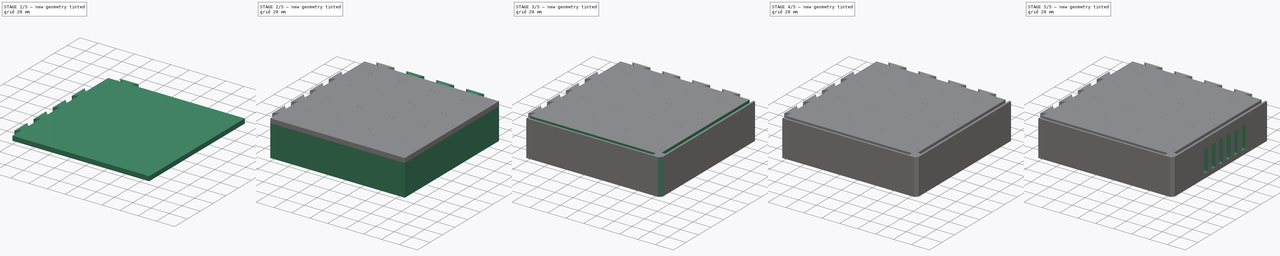
[diagram: build sequence overview — one tinted view per stage of 5, left to right]
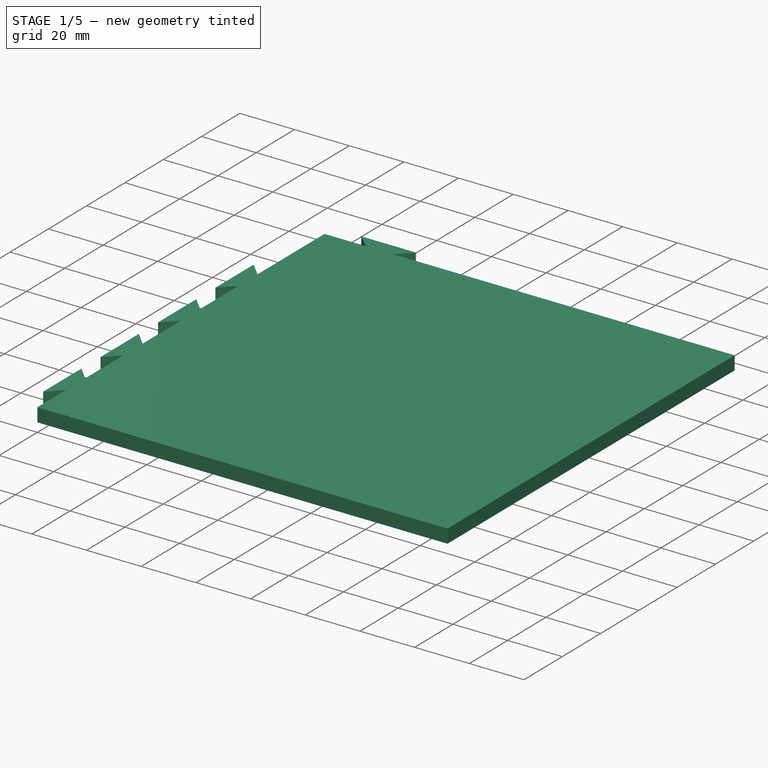
[diagram: stage 1 of 5 — iso view after this stage's code; geometry added in this stage tinted green]
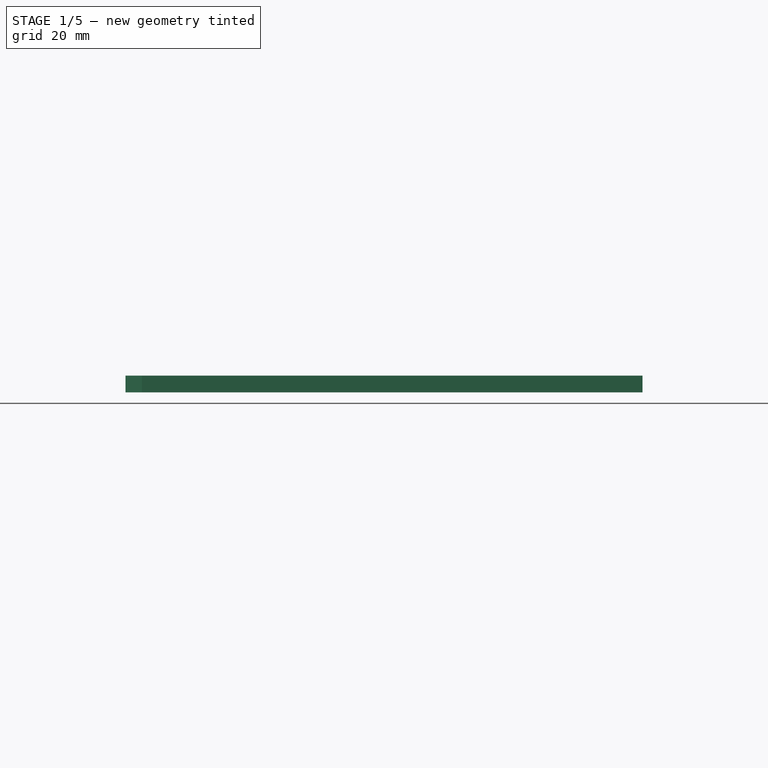
[diagram: stage 1 of 5 — front view after this stage's code; geometry added in this stage tinted green]
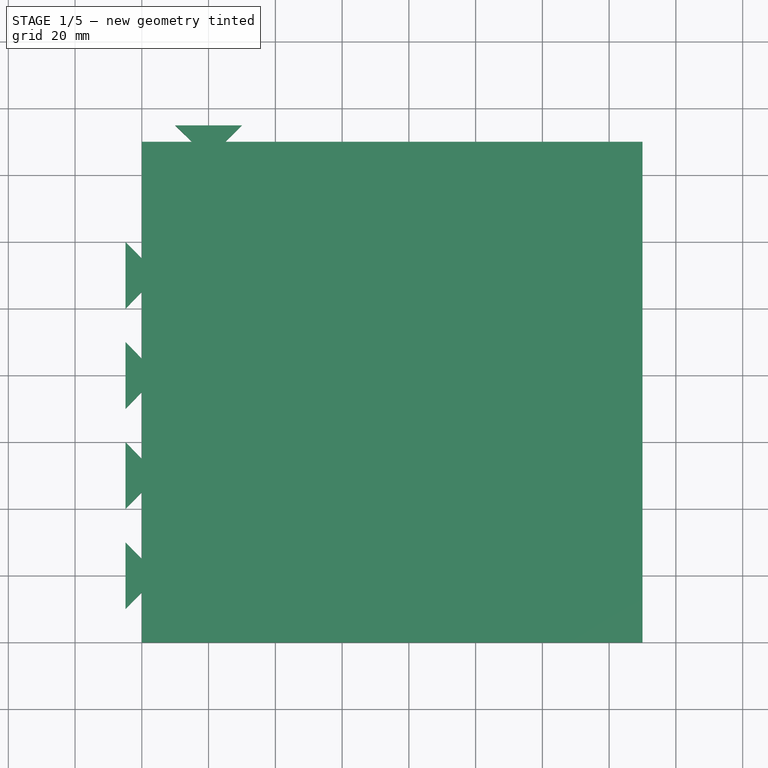
[diagram: stage 1 of 5 — top view after this stage's code; geometry added in this stage tinted green]
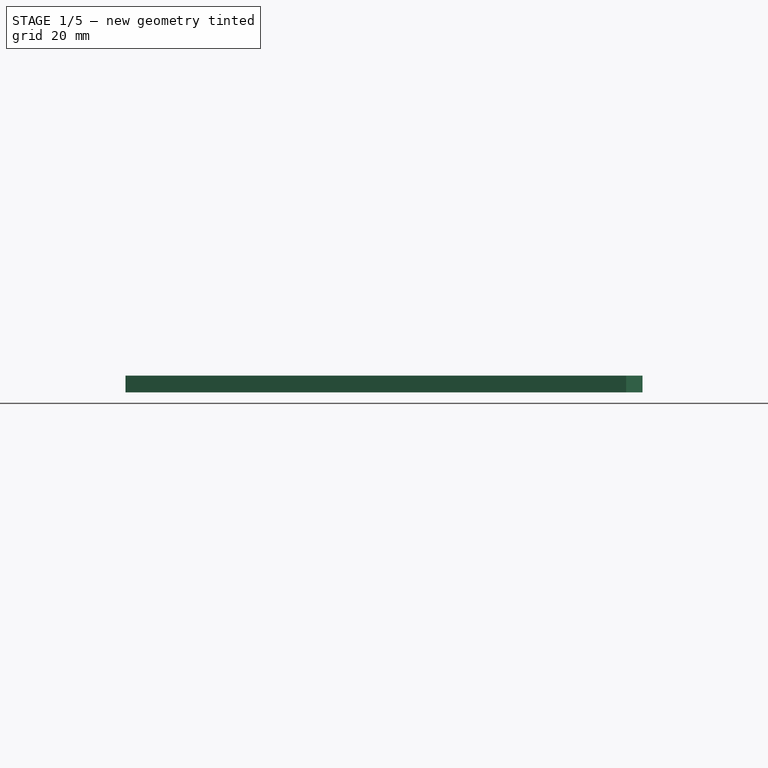
[diagram: stage 1 of 5 — right view after this stage's code; geometry added in this stage tinted green]
FCSTD DOCUMENT  (FreeCAD 0.19R24267 +148 (Git))
Label: Desni donji dio led_cube
License: All rights reserved
LicenseURL: http://en.wikipedia.org/wiki/All_rights_reserved
objects: Sketcher::SketchObject×12, PartDesign::Pad×6, PartDesign::Pocket×5, PartDesign::LinearPattern×4, PartDesign::Chamfer×3, PartDesign::Hole×1, PartDesign::Body×1
note: 47 computed .brp shape members not serialized (recipe doc carries the construction recipe); baked Part::Feature solids carry a one-line shape summary decoded from their .brp

FEATURE [Sketcher::SketchObject] Sketch
  FullyConstrained = true
  MapMode = 5
  Support = -> [XY_Plane]
  sketch-geometry (4):
    g0: LineSegment StartX=0 StartY=0 StartZ=0 EndX=150 EndY=0 EndZ=0
    g1: LineSegment StartX=150 StartY=0 StartZ=0 EndX=150 EndY=150 EndZ=0
    g2: LineSegment StartX=150 StartY=150 StartZ=0 EndX=0 EndY=150 EndZ=0
    g3: LineSegment StartX=0 StartY=150 StartZ=0 EndX=0 EndY=0 EndZ=0
  constraints (11):
    c: Coincident(g0,g1)
    c: Coincident(g1,g2)
    c: Coincident(g2,g3)
    c: Coincident(g3,g0)
    c: Horizontal(g0)
    c: Horizontal(g2)
    c: Vertical(g1)
    c: Vertical(g3)
    c: Coincident(g0,g-1)
    c: DistanceX(g2,g2) = 150
    c: DistanceY(g3,g3) = 150
FEATURE [PartDesign::Pad] Pad
  Direction = (1,1,1)
  Length = 5
  Length2 = 100
  Profile = -> Sketch
  Type = 0
FEATURE [Sketcher::SketchObject] Sketch001
  FullyConstrained = true
  MapMode = 5
  Placement = pos=(0,0,5) rot=(0,0,1;0rad)
  Support = -> [Pad]
  sketch-geometry (5):
    g0: LineSegment StartX=0 StartY=0 StartZ=0 EndX=0 EndY=15 EndZ=0
    g1: LineSegment StartX=0 StartY=15 StartZ=0 EndX=0 EndY=25 EndZ=0
    g2: LineSegment StartX=0 StartY=15 StartZ=0 EndX=-4.89898 EndY=10 EndZ=0
    g3: LineSegment StartX=-4.89898 StartY=10 StartZ=0 EndX=-4.89898 EndY=30 EndZ=0
    g4: LineSegment StartX=0 StartY=25 StartZ=0 EndX=-4.89898 EndY=30 EndZ=0
  constraints (14):
    c: Coincident(g0,g-1)
    c: PointOnObject(g0,g-2)
    c: DistanceY(g0,g0) = 15
    c: Coincident(g1,g0)
    c: PointOnObject(g1,g-2)
    c: DistanceY(g1,g1) = 10
    c: Coincident(g2,g1)
    c: Distance(g2) = 7
    c: Coincident(g3,g2)
    c: Vertical(g3)
    c: DistanceY(g3,g3) = 20
    c: Coincident(g4,g1)
    c: Coincident(g4,g3)
    c: Distance(g4) = 7
FEATURE [PartDesign::Pad] Pad001
  BaseFeature = -> Pad
  Direction = (1,1,1)
  Length = 5
  Length2 = 100
  Profile = -> Sketch001
  Reversed = true
  Type = 0
FEATURE [PartDesign::LinearPattern] LinearPattern
  BaseFeature = -> Pad001
  Direction = -> Y_Axis
  Length = 90
  Occurrences = 4
  Originals = -> [Pad001]
FEATURE [Sketcher::SketchObject] Sketch002
  FullyConstrained = true
  MapMode = 5
  Placement = pos=(0,0,5) rot=(0,0,1;0rad)
  Support = -> [LinearPattern]
  sketch-geometry (6):
    g0: LineSegment StartX=0 StartY=0 StartZ=0 EndX=0 EndY=150 EndZ=0
    g1: LineSegment StartX=0 StartY=150 StartZ=0 EndX=15 EndY=150 EndZ=0
    g2: LineSegment StartX=15 StartY=150 StartZ=0 EndX=25 EndY=150 EndZ=0
    g3: LineSegment StartX=15 StartY=150 StartZ=0 EndX=10 EndY=154.899 EndZ=0
    g4: LineSegment StartX=10 StartY=154.899 StartZ=0 EndX=30 EndY=154.899 EndZ=0
    g5: LineSegment StartX=25 StartY=150 StartZ=0 EndX=30 EndY=154.899 EndZ=0
  constraints (17):
    c: Coincident(g0,g-1)
    c: PointOnObject(g0,g-2)
    c: DistanceY(g0,g0) = 150
    c: Coincident(g1,g0)
    c: Horizontal(g1)
    c: DistanceX(g1,g1) = 15
    c: Coincident(g2,g1)
    c: Horizontal(g2)
    c: DistanceX(g2,g2) = 10
    c: Coincident(g3,g2)
    c: Distance(g3) = 7
    c: Coincident(g4,g3)
    c: Horizontal(g4)
    c: DistanceX(g4,g4) = 20
    c: Coincident(g5,g2)
    c: Coincident(g5,g4)
    c: Distance(g5) = 7
FEATURE [PartDesign::Pad] Pad002
  BaseFeature = -> LinearPattern
  Direction = (1,1,1)
  Length = 5
  Length2 = 100
  Profile = -> Sketch002
  Reversed = true
  Type = 0
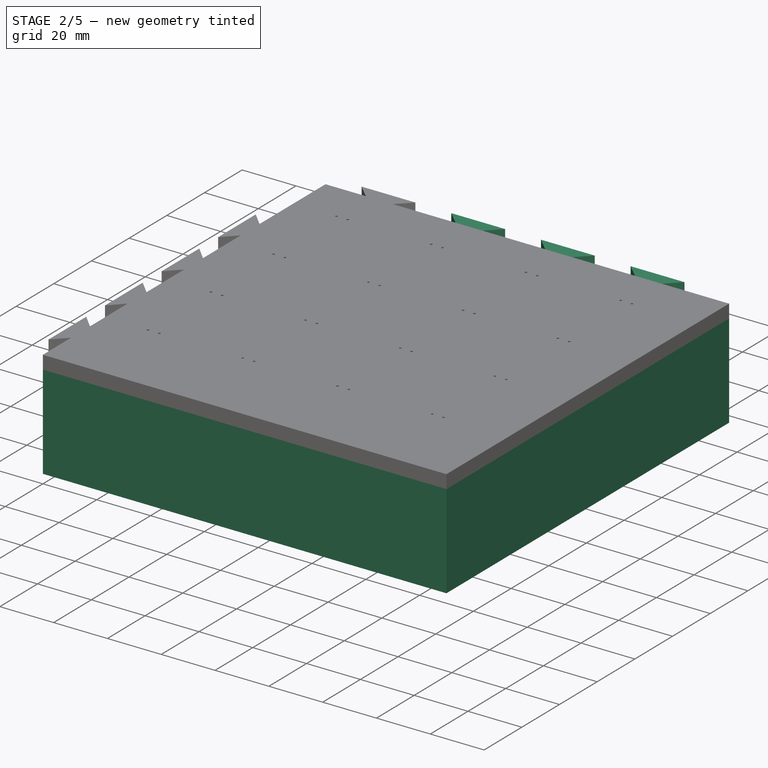
[diagram: stage 2 of 5 — iso view after this stage's code; geometry added in this stage tinted green]
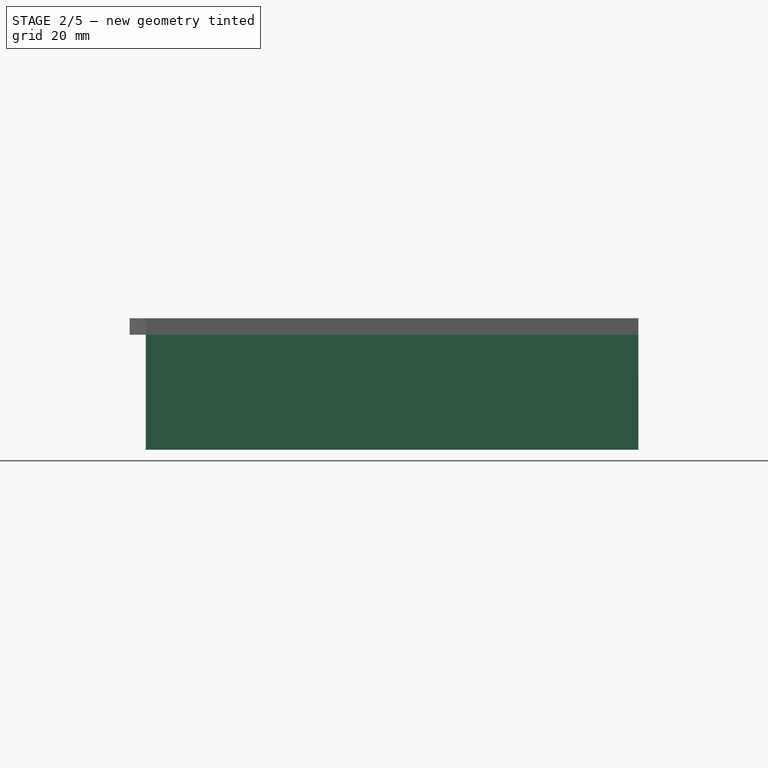
[diagram: stage 2 of 5 — front view after this stage's code; geometry added in this stage tinted green]
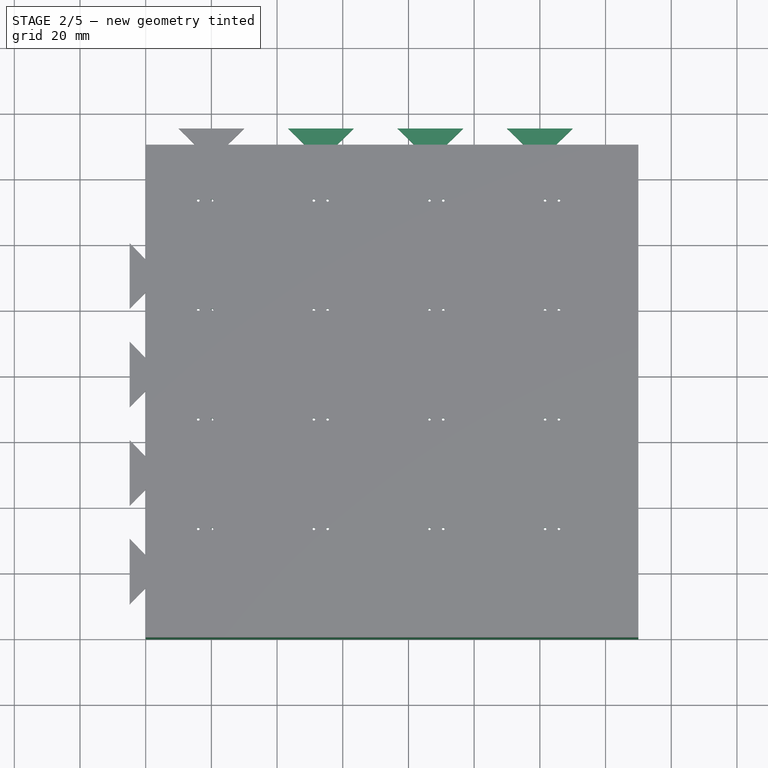
[diagram: stage 2 of 5 — top view after this stage's code; geometry added in this stage tinted green]
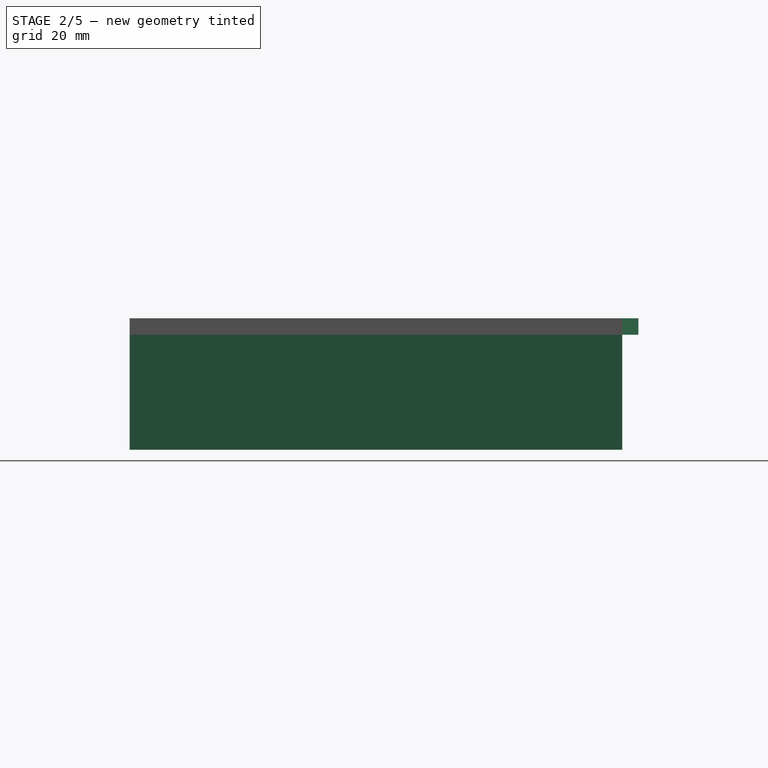
[diagram: stage 2 of 5 — right view after this stage's code; geometry added in this stage tinted green]
FEATURE [PartDesign::LinearPattern] LinearPattern001
  BaseFeature = -> Pad002
  Direction = -> X_Axis
  Length = 100
  Occurrences = 4
  Originals = -> [Pad002]
FEATURE [Sketcher::SketchObject] Sketch003
  FullyConstrained = true
  MapMode = 5
  Placement = pos=(0,0,0) rot=(1,0,0;3.14159rad)
  Support = -> [LinearPattern001]
  sketch-geometry (8):
    g0: LineSegment StartX=0 StartY=0 StartZ=0 EndX=150 EndY=0 EndZ=0
    g1: LineSegment StartX=150 StartY=0 StartZ=0 EndX=150 EndY=-150 EndZ=0
    g2: LineSegment StartX=0 StartY=0 StartZ=0 EndX=0 EndY=-4.5 EndZ=0
    g3: LineSegment StartX=0 StartY=-4.5 StartZ=0 EndX=130 EndY=-4.5 EndZ=0
    g4: LineSegment StartX=150 StartY=-150 StartZ=0 EndX=145.5 EndY=-150 EndZ=0
    g5: LineSegment StartX=145.5 StartY=-150 StartZ=0 EndX=145.5 EndY=-20 EndZ=0
    g6: LineSegment StartX=145.5 StartY=-20 StartZ=0 EndX=130 EndY=-20 EndZ=0
    g7: LineSegment StartX=130 StartY=-4.5 StartZ=0 EndX=130 EndY=-20 EndZ=0
  constraints (23):
    c: Coincident(g0,g-1)
    c: PointOnObject(g0,g-1)
    c: DistanceX(g0,g0) = 150
    c: Coincident(g1,g0)
    c: Vertical(g1)
    c: DistanceY(g1,g1) = 150
    c: Coincident(g2,g0)
    c: PointOnObject(g2,g-2)
    c: DistanceY(g2,g2) = 4.5
    c: Coincident(g3,g2)
    c: Horizontal(g3)
    c: DistanceX(g3,g3) = 130
    c: Coincident(g4,g1)
    c: Horizontal(g4)
    c: DistanceX(g4,g4) = 4.5
    c: Coincident(g5,g4)
    c: Vertical(g5)
    c: DistanceY(g5,g5) = 130
    c: Coincident(g6,g5)
    c: Horizontal(g6)
    c: DistanceX(g6,g6) = 15.5
    c: Coincident(g7,g3)
    c: Coincident(g7,g6)
FEATURE [PartDesign::Pad] Pad003
  BaseFeature = -> LinearPattern001
  Direction = (1,1,1)
  Length = 35
  Length2 = 100
  Profile = -> Sketch003
  Type = 0
FEATURE [Sketcher::SketchObject] Sketch004
  FullyConstrained = true
  MapMode = 5
  Placement = pos=(0,0,5) rot=(0,0,1;0rad)
  Support = -> [Pad003]
  sketch-geometry (19):
    g0: LineSegment StartX=0 StartY=0 StartZ=0 EndX=150 EndY=0 EndZ=0
    g1: LineSegment StartX=0 StartY=0 StartZ=0 EndX=0 EndY=150 EndZ=0
    g2: Circle CenterX=16 CenterY=33 CenterZ=0 NormalX=0 NormalY=0 NormalZ=1 AngleXU=0 Radius=0.6
    g3: LineSegment StartX=16 StartY=33 StartZ=0 EndX=20.2 EndY=33 EndZ=0
    g4: Circle CenterX=20.2 CenterY=33 CenterZ=0 NormalX=0 NormalY=0 NormalZ=1 AngleXU=0 Radius=0.6
    g5: LineSegment StartX=20.2 StartY=33 StartZ=0 EndX=51.2 EndY=33 EndZ=0
    g6: Circle CenterX=51.2 CenterY=33 CenterZ=0 NormalX=0 NormalY=0 NormalZ=1 AngleXU=0 Radius=0.6
    g7: LineSegment StartX=51.2 StartY=33 StartZ=0 EndX=55.4 EndY=33 EndZ=0
    g8: Circle CenterX=55.4 CenterY=33 CenterZ=0 NormalX=0 NormalY=0 NormalZ=1 AngleXU=0 Radius=0.6
    g9: LineSegment StartX=55.4 StartY=33 StartZ=0 EndX=86.4 EndY=33 EndZ=0
    g10: Circle CenterX=86.4 CenterY=33 CenterZ=0 NormalX=0 NormalY=0 NormalZ=1 AngleXU=0 Radius=0.6
    g11: LineSegment StartX=86.4 StartY=33 StartZ=0 EndX=90.6 EndY=33 EndZ=0
    g12: Circle CenterX=90.6 CenterY=33 CenterZ=0 NormalX=0 NormalY=0 NormalZ=1 AngleXU=0 Radius=0.6
    g13: LineSegment StartX=90.6 StartY=33 StartZ=0 EndX=121.6 EndY=33 EndZ=0
    g14: Circle CenterX=121.6 CenterY=33 CenterZ=0 NormalX=0 NormalY=0 NormalZ=1 AngleXU=0 Radius=0.6
    g15: LineSegment StartX=121.6 StartY=33 StartZ=0 EndX=125.8 EndY=33 EndZ=0
    g16: Circle CenterX=125.8 CenterY=33 CenterZ=0 NormalX=0 NormalY=0 NormalZ=1 AngleXU=0 Radius=0.6
    g17: LineSegment StartX=16 StartY=33 StartZ=0 EndX=0 EndY=33 EndZ=0
    g18: LineSegment StartX=16 StartY=33 StartZ=0 EndX=16 EndY=0 EndZ=0
  constraints (50):
    c: Coincident(g0,g-1)
    c: Horizontal(g0)
    c: DistanceX(g0,g0) = 150
    c: Coincident(g1,g-1)
    c: PointOnObject(g1,g-2)
    c: DistanceY(g1,g1) = 150
    c: Radius(g2) = 0.6
    c: Coincident(g3,g2)
    c: Horizontal(g3)
    c: DistanceX(g3,g3) = 4.2
    c: Coincident(g4,g3)
    c: Radius(g4) = 0.6
    c: Coincident(g5,g4)
    c: Horizontal(g5)
    c: DistanceX(g5,g5) = 31
    c: Coincident(g6,g5)
    c: Radius(g6) = 0.6
    c: Coincident(g7,g6)
    c: Horizontal(g7)
    c: DistanceX(g7,g7) = 4.2
    c: Coincident(g8,g7)
    c: Radius(g8) = 0.6
    c: Coincident(g9,g8)
    c: Horizontal(g9)
    c: DistanceX(g9,g9) = 31
    c: Coincident(g10,g9)
    c: Radius(g10) = 0.6
    c: Coincident(g11,g10)
    c: Horizontal(g11)
    c: DistanceX(g11,g11) = 4.2
    c: Coincident(g12,g11)
    c: Radius(g12) = 0.6
    c: Coincident(g13,g12)
    c: Horizontal(g13)
    c: DistanceX(g13,g13) = 31
    c: Coincident(g14,g13)
    c: Radius(g14) = 0.6
    c: Coincident(g15,g14)
    c: Horizontal(g15)
    c: DistanceX(g15,g15) = 4.2
    c: Coincident(g16,g15)
    c: Radius(g16) = 0.6
    c: Coincident(g17,g2)
    c: PointOnObject(g17,g1)
    c: Horizontal(g17)
    c: DistanceX(g17,g17) = 16
    c: Coincident(g18,g2)
    c: PointOnObject(g18,g0)
    c: Vertical(g18)
    c: DistanceY(g18,g18) = 33
FEATURE [PartDesign::Hole] Hole
  BaseFeature = -> Pad003
  Depth = 25
  DepthType = 0
  Diameter = 0.8
  DrillForDepth = false
  DrillPoint = 1
  DrillPointAngle = 118
  HoleCutCountersinkAngle = 90
  HoleCutCustomValues = false
  HoleCutDepth = 0
  HoleCutDiameter = 6.1
  HoleCutType = 0
  ModelActualThread = false
  Profile = -> Sketch004
  Tapered = false
  TaperedAngle = 90
  ThreadAngle = 0
  ThreadClass = 0
  ThreadCutOffInner = 0
  ThreadCutOffOuter = 0
  ThreadDirection = 0
  ThreadFit = 0
  ThreadPitch = 0
  ThreadSize = 0
  ThreadType = 0
  Threaded = false
FEATURE [PartDesign::LinearPattern] LinearPattern002
  BaseFeature = -> Hole
  Direction = -> Y_Axis
  Length = 100
  Occurrences = 4
  Originals = -> [Hole]
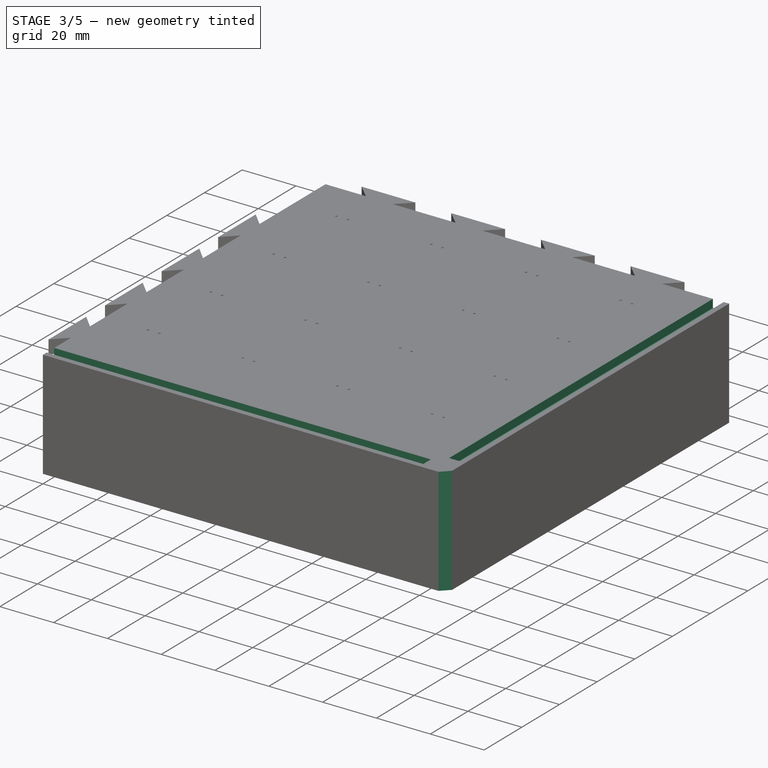
[diagram: stage 3 of 5 — iso view after this stage's code; geometry added in this stage tinted green]
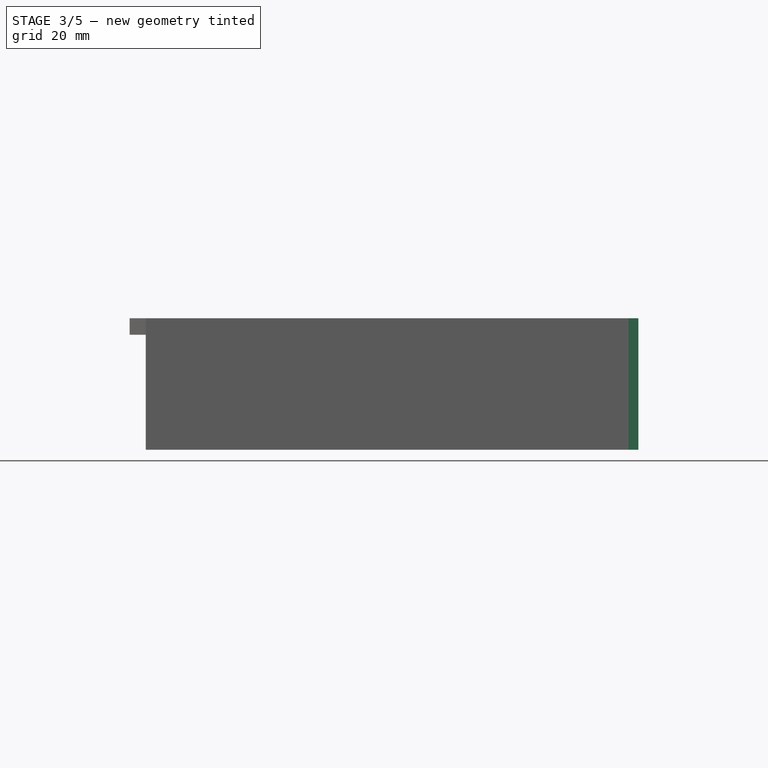
[diagram: stage 3 of 5 — front view after this stage's code; geometry added in this stage tinted green]
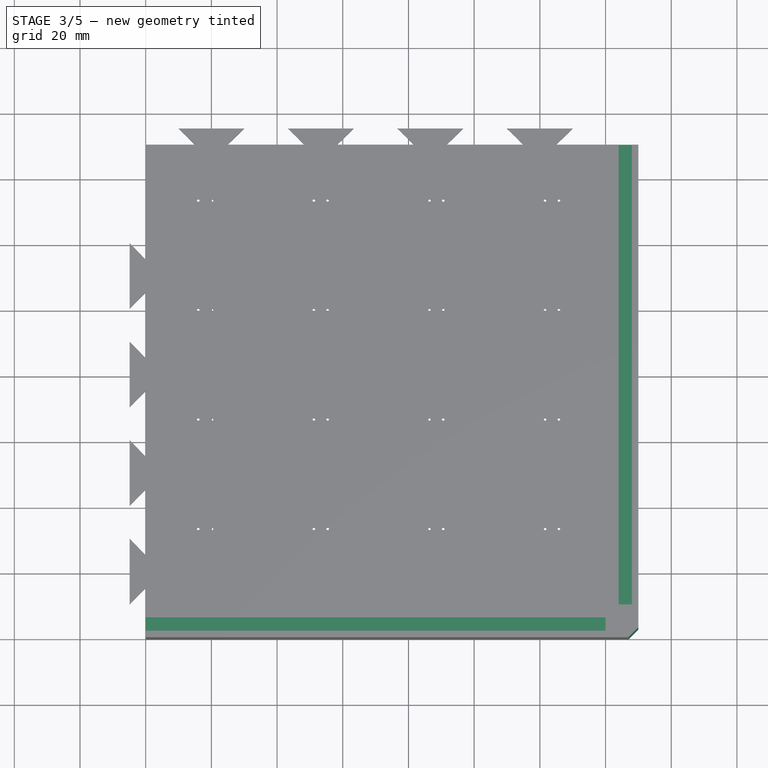
[diagram: stage 3 of 5 — top view after this stage's code; geometry added in this stage tinted green]
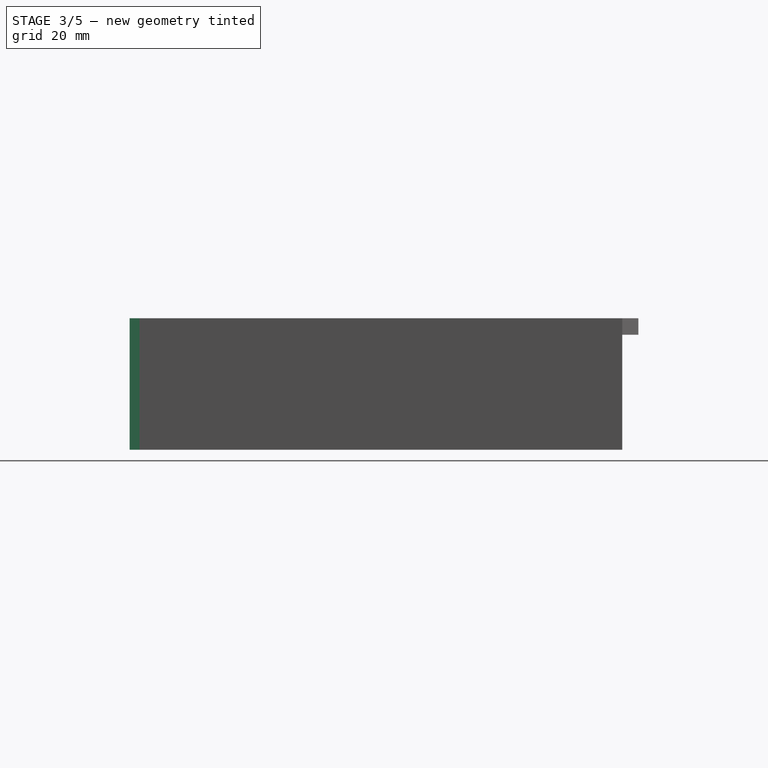
[diagram: stage 3 of 5 — right view after this stage's code; geometry added in this stage tinted green]
FEATURE [PartDesign::Chamfer] Chamfer
  Angle = 45
  Base = -> LinearPattern002 [Edge2]
  BaseFeature = -> LinearPattern002
  ChamferType = 0
  FlipDirection = false
  Size = 3
  Size2 = 1
  SupportTransform = false
FEATURE [Sketcher::SketchObject] Sketch005
  FullyConstrained = true
  MapMode = 5
  Placement = pos=(0,0,5) rot=(0,0,1;0rad)
  Support = -> [Chamfer]
  sketch-geometry (5):
    g0: LineSegment StartX=0 StartY=0 StartZ=0 EndX=0 EndY=2 EndZ=0
    g1: LineSegment StartX=0 StartY=2 StartZ=0 EndX=0 EndY=6 EndZ=0
    g2: LineSegment StartX=0 StartY=2 StartZ=0 EndX=140 EndY=2 EndZ=0
    g3: LineSegment StartX=140 StartY=2 StartZ=0 EndX=140 EndY=6 EndZ=0
    g4: LineSegment StartX=140 StartY=6 StartZ=0 EndX=0 EndY=6 EndZ=0
  constraints (15):
    c: Coincident(g0,g-1)
    c: PointOnObject(g0,g-2)
    c: DistanceY(g0,g0) = 2
    c: Coincident(g1,g0)
    c: PointOnObject(g1,g-2)
    c: DistanceY(g1,g1) = 4
    c: Coincident(g2,g1)
    c: Horizontal(g2)
    c: DistanceX(g2,g2) = 140
    c: Coincident(g3,g2)
    c: Vertical(g3)
    c: DistanceY(g3,g3) = 4
    c: Coincident(g4,g3)
    c: Horizontal(g4)
    c: DistanceX(g4,g4) = 140
FEATURE [PartDesign::Pocket] Pocket
  BaseFeature = -> Chamfer
  Length = 3
  Length2 = 100
  Profile = -> Sketch005
  Type = 0
FEATURE [Sketcher::SketchObject] Sketch006
  FullyConstrained = true
  MapMode = 5
  Placement = pos=(0,0,5) rot=(0,0,1;0rad)
  Support = -> [Pocket]
  sketch-geometry (7):
    g0: LineSegment StartX=0 StartY=0 StartZ=0 EndX=150 EndY=0 EndZ=0
    g1: LineSegment StartX=150 StartY=0 StartZ=0 EndX=150 EndY=150 EndZ=0
    g2: LineSegment StartX=150 StartY=150 StartZ=0 EndX=148 EndY=150 EndZ=0
    g3: LineSegment StartX=148 StartY=150 StartZ=0 EndX=144 EndY=150 EndZ=0
    g4: LineSegment StartX=148 StartY=150 StartZ=0 EndX=148 EndY=10 EndZ=0
    g5: LineSegment StartX=148 StartY=10 StartZ=0 EndX=144 EndY=10 EndZ=0
    g6: LineSegment StartX=144 StartY=10 StartZ=0 EndX=144 EndY=150 EndZ=0
  constraints (21):
    c: Coincident(g0,g-1)
    c: PointOnObject(g0,g-1)
    c: DistanceX(g0,g0) = 150
    c: Coincident(g1,g0)
    c: Vertical(g1)
    c: DistanceY(g1,g1) = 150
    c: Coincident(g2,g1)
    c: Horizontal(g2)
    c: DistanceX(g2,g2) = 2
    c: Coincident(g3,g2)
    c: Horizontal(g3)
    c: DistanceX(g3,g3) = 4
    c: Coincident(g4,g3)
    c: Vertical(g4)
    c: DistanceY(g4,g4) = 140
    c: Coincident(g5,g4)
    c: Horizontal(g5)
    c: DistanceX(g5,g5) = 4
    c: Coincident(g6,g5)
    c: Vertical(g6)
    c: DistanceY(g6,g6) = 140
FEATURE [PartDesign::Pocket] Pocket001
  BaseFeature = -> Pocket
  Length = 3
  Length2 = 100
  Profile = -> Sketch006
  Type = 0
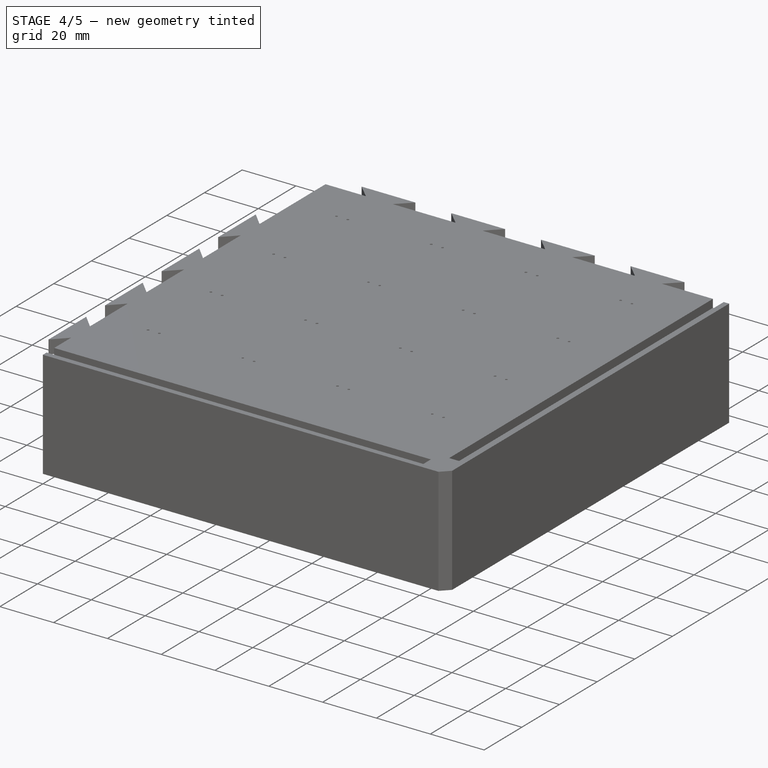
[diagram: stage 4 of 5 — iso view after this stage's code; geometry added in this stage tinted green]
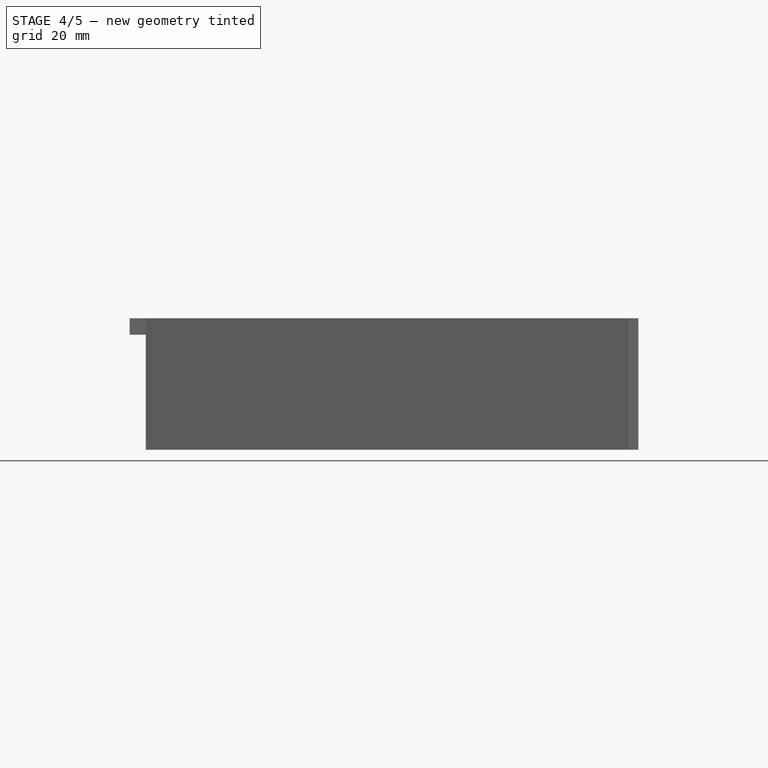
[diagram: stage 4 of 5 — front view after this stage's code; geometry added in this stage tinted green]
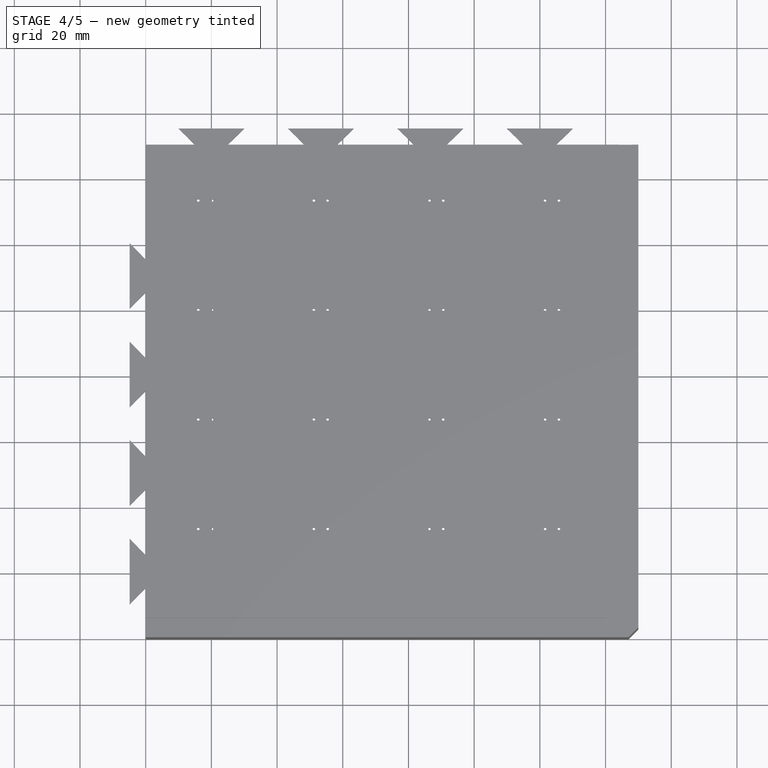
[diagram: stage 4 of 5 — top view after this stage's code; geometry added in this stage tinted green]
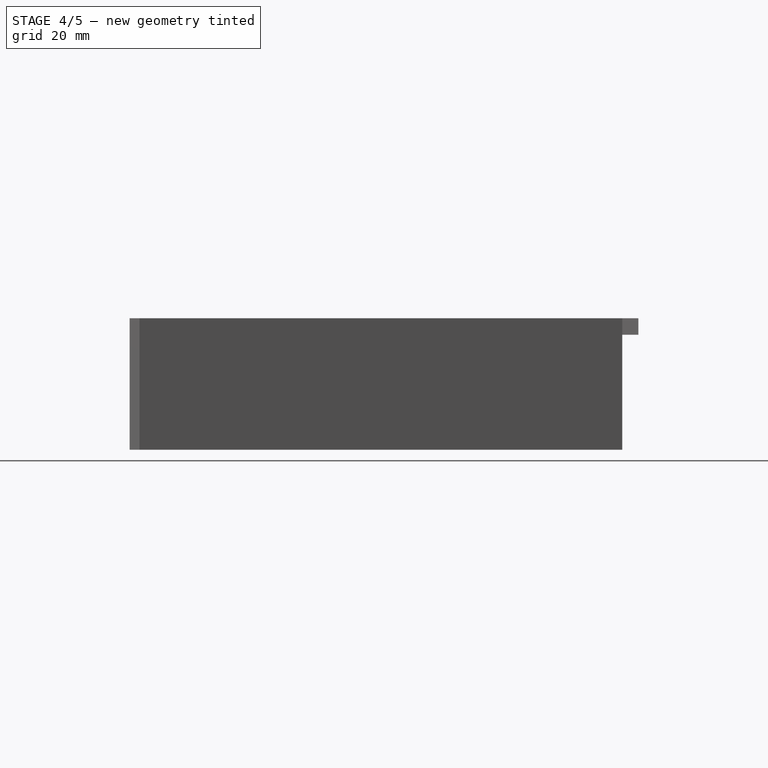
[diagram: stage 4 of 5 — right view after this stage's code; geometry added in this stage tinted green]
FEATURE [Sketcher::SketchObject] Sketch007
  FullyConstrained = true
  MapMode = 5
  Placement = pos=(0,0,-35) rot=(1,0,0;3.14159rad)
  Support = -> [Pocket001]
  sketch-geometry (7):
    g0: LineSegment StartX=0 StartY=0 StartZ=0 EndX=150 EndY=0 EndZ=0
    g1: LineSegment StartX=150 StartY=0 StartZ=0 EndX=150 EndY=-5 EndZ=0
    g2: LineSegment StartX=150 StartY=-5 StartZ=0 EndX=145 EndY=-5 EndZ=0
    g3: LineSegment StartX=145 StartY=-5 StartZ=0 EndX=145 EndY=-18 EndZ=0
    g4: LineSegment StartX=145 StartY=-5 StartZ=0 EndX=132 EndY=-5 EndZ=0
    g5: LineSegment StartX=132 StartY=-5 StartZ=0 EndX=132 EndY=-18 EndZ=0
    g6: LineSegment StartX=132 StartY=-18 StartZ=0 EndX=145 EndY=-18 EndZ=0
  constraints (20):
    c: Coincident(g0,g-1)
    c: PointOnObject(g0,g-1)
    c: DistanceX(g0,g0) = 150
    c: Coincident(g1,g0)
    c: Vertical(g1)
    c: DistanceY(g1,g1) = 5
    c: Coincident(g2,g1)
    c: Horizontal(g2)
    c: DistanceX(g2,g2) = 5
    c: Coincident(g3,g2)
    c: Vertical(g3)
    c: DistanceY(g3,g3) = 13
    c: Coincident(g4,g3)
    c: Horizontal(g4)
    c: DistanceX(g4,g4) = 13
    c: Coincident(g5,g4)
    c: Vertical(g5)
    c: DistanceY(g5,g5) = 13
    c: Coincident(g6,g5)
    c: Coincident(g6,g3)
FEATURE [PartDesign::Pocket] Pocket002
  BaseFeature = -> Pocket001
  Length = 4
  Length2 = 100
  Profile = -> Sketch007
  Type = 0
FEATURE [Sketcher::SketchObject] Sketch008
  FullyConstrained = true
  MapMode = 5
  Placement = pos=(0,0,0) rot=(1,0,0;3.14159rad)
  Support = -> [Pocket001]
  sketch-geometry (98):
    g0: LineSegment StartX=0 StartY=0 StartZ=0 EndX=0 EndY=-150 EndZ=0
    g1: LineSegment StartX=0 StartY=-150 StartZ=0 EndX=16 EndY=-150 EndZ=0
    g2: LineSegment StartX=16 StartY=-150 StartZ=0 EndX=16 EndY=-134 EndZ=0
    g3: LineSegment StartX=16 StartY=-134 StartZ=0 EndX=16 EndY=-131.5 EndZ=0
    g4: LineSegment StartX=16 StartY=-131.5 StartZ=0 EndX=14.5 EndY=-131.5 EndZ=0
    g5: LineSegment StartX=14.5 StartY=-131.5 StartZ=0 EndX=14.5 EndY=-105.5 EndZ=0
    g6: LineSegment StartX=14.5 StartY=-131.5 StartZ=0 EndX=13 EndY=-131.5 EndZ=0
    g7: LineSegment StartX=13 StartY=-131.5 StartZ=0 EndX=13 EndY=-105.5 EndZ=0
    g8: LineSegment StartX=13 StartY=-105.5 StartZ=0 EndX=14.5 EndY=-105.5 EndZ=0
    g9: LineSegment StartX=13 StartY=-131.5 StartZ=0 EndX=11.6 EndY=-131.5 EndZ=0
    g10: LineSegment StartX=11.6 StartY=-131.5 StartZ=0 EndX=11.6 EndY=-105.5 EndZ=0
    g11: LineSegment StartX=11.6 StartY=-131.5 StartZ=0 EndX=10.1 EndY=-131.5 EndZ=0
    g12: LineSegment StartX=10.1 StartY=-131.5 StartZ=0 EndX=10.1 EndY=-105.5 EndZ=0
    g13: LineSegment StartX=10.1 StartY=-105.5 StartZ=0 EndX=11.6 EndY=-105.5 EndZ=0
    g14: LineSegment StartX=16 StartY=-134 StartZ=0 EndX=20.2 EndY=-134 EndZ=0
    g15: LineSegment StartX=20.2 StartY=-134 StartZ=0 EndX=20.2 EndY=-131.5 EndZ=0
    g16: LineSegment StartX=20.2 StartY=-131.5 StartZ=0 EndX=21.7 EndY=-131.5 EndZ=0
    g17: LineSegment StartX=21.7 StartY=-131.5 StartZ=0 EndX=21.7 EndY=-105.5 EndZ=0
    g18: LineSegment StartX=21.7 StartY=-131.5 StartZ=0 EndX=23.2 EndY=-131.5 EndZ=0
    g19: LineSegment StartX=23.2 StartY=-131.5 StartZ=0 EndX=23.2 EndY=-105.5 EndZ=0
    g20: LineSegment StartX=21.7 StartY=-105.5 StartZ=0 EndX=23.2 EndY=-105.5 EndZ=0
    g21: LineSegment StartX=23.2 StartY=-131.5 StartZ=0 EndX=24.6 EndY=-131.5 EndZ=0
    g22: LineSegment StartX=24.6 StartY=-131.5 StartZ=0 EndX=24.6 EndY=-105.5 EndZ=0
    g23: LineSegment StartX=24.6 StartY=-131.5 StartZ=0 EndX=26.1 EndY=-131.5 EndZ=0
    g24: LineSegment StartX=26.1 StartY=-131.5 StartZ=0 EndX=26.1 EndY=-105.5 EndZ=0
    g25: LineSegment StartX=24.6 StartY=-105.5 StartZ=0 EndX=26.1 EndY=-105.5 EndZ=0
    g26: LineSegment StartX=20.2 StartY=-134 StartZ=0 EndX=51.2 EndY=-134 EndZ=0
    g27: LineSegment StartX=51.2 StartY=-134 StartZ=0 EndX=51.2 EndY=-131.5 EndZ=0
    g28: LineSegment StartX=51.2 StartY=-131.5 StartZ=0 EndX=49.7 EndY=-131.5 EndZ=0
    g29: LineSegment StartX=49.7 StartY=-131.5 StartZ=0 EndX=49.7 EndY=-105.5 EndZ=0
    g30: LineSegment StartX=49.7 StartY=-131.5 StartZ=0 EndX=48.2 EndY=-131.5 EndZ=0
    g31: LineSegment StartX=48.2 StartY=-131.5 StartZ=0 EndX=48.2 EndY=-105.5 EndZ=0
    g32: LineSegment StartX=49.7 StartY=-105.5 StartZ=0 EndX=48.2 EndY=-105.5 EndZ=0
    g33: LineSegment StartX=48.2 StartY=-131.5 StartZ=0 EndX=46.8 EndY=-131.5 EndZ=0
    g34: LineSegment StartX=46.8 StartY=-131.5 StartZ=0 EndX=46.8 EndY=-105.5 EndZ=0
    g35: LineSegment StartX=46.8 StartY=-131.5 StartZ=0 EndX=45.3 EndY=-131.5 EndZ=0
    g36: LineSegment StartX=45.3 StartY=-131.5 StartZ=0 EndX=45.3 EndY=-105.5 EndZ=0
    g37: LineSegment StartX=46.8 StartY=-105.5 StartZ=0 EndX=45.3 EndY=-105.5 EndZ=0
    g38: LineSegment StartX=51.2 StartY=-134 StartZ=0 EndX=55.4 EndY=-134 EndZ=0
    g39: LineSegment StartX=55.4 StartY=-134 StartZ=0 EndX=55.4 EndY=-131.5 EndZ=0
    g40: LineSegment StartX=55.4 StartY=-131.5 StartZ=0 EndX=56.9 EndY=-131.5 EndZ=0
    g41: LineSegment StartX=56.9 StartY=-131.5 StartZ=0 EndX=56.9 EndY=-105.5 EndZ=0
    g42: LineSegment StartX=56.9 StartY=-131.5 StartZ=0 EndX=58.4 EndY=-131.5 EndZ=0
    g43: LineSegment StartX=58.4 StartY=-131.5 StartZ=0 EndX=58.4 EndY=-105.5 EndZ=0
    g44: LineSegment StartX=56.9 StartY=-105.5 StartZ=0 EndX=58.4 EndY=-105.5 EndZ=0
    g45: LineSegment StartX=58.4 StartY=-131.5 StartZ=0 EndX=59.8 EndY=-131.5 EndZ=0
    g46: LineSegment StartX=59.8 StartY=-131.5 StartZ=0 EndX=59.8 EndY=-105.5 EndZ=0
    g47: LineSegment StartX=59.8 StartY=-131.5 StartZ=0 EndX=61.3 EndY=-131.5 EndZ=0
    g48: LineSegment StartX=61.3 StartY=-131.5 StartZ=0 EndX=61.3 EndY=-105.5 EndZ=0
    g49: LineSegment StartX=61.3 StartY=-105.5 StartZ=0 EndX=59.8 EndY=-105.5 EndZ=0
    g50: LineSegment StartX=55.4 StartY=-134 StartZ=0 EndX=86.4 EndY=-134 EndZ=0
    g51: LineSegment StartX=86.4 StartY=-134 StartZ=0 EndX=86.4 EndY=-131.5 EndZ=0
    g52: LineSegment StartX=86.4 StartY=-131.5 StartZ=0 EndX=84.9 EndY=-131.5 EndZ=0
    g53: LineSegment StartX=84.9 StartY=-131.5 StartZ=0 EndX=84.9 EndY=-105.5 EndZ=0
    g54: LineSegment StartX=84.9 StartY=-131.5 StartZ=0 EndX=83.4 EndY=-131.5 EndZ=0
    g55: LineSegment StartX=84.9 StartY=-105.5 StartZ=0 EndX=83.4 EndY=-105.5 EndZ=0
    g56: LineSegment StartX=83.4 StartY=-131.5 StartZ=0 EndX=82 EndY=-131.5 EndZ=0
    g57: LineSegment StartX=82 StartY=-131.5 StartZ=0 EndX=82 EndY=-105.5 EndZ=0
    g58: LineSegment StartX=82 StartY=-131.5 StartZ=0 EndX=80.5 EndY=-131.5 EndZ=0
    g59: LineSegment StartX=80.5 StartY=-131.5 StartZ=0 EndX=80.5 EndY=-105.5 EndZ=0
    g60: LineSegment StartX=80.5 StartY=-105.5 StartZ=0 EndX=82 EndY=-105.5 EndZ=0
    g61: LineSegment StartX=86.4 StartY=-134 StartZ=0 EndX=90.6 EndY=-134 EndZ=0
    g62: LineSegment StartX=90.6 StartY=-134 StartZ=0 EndX=90.6 EndY=-131.5 EndZ=0
    g63: LineSegment StartX=90.6 StartY=-131.5 StartZ=0 EndX=92.1 EndY=-131.5 EndZ=0
    g64: LineSegment StartX=92.1 StartY=-131.5 StartZ=0 EndX=93.6 EndY=-131.5 EndZ=0
    g65: LineSegment StartX=93.6 StartY=-131.5 StartZ=0 EndX=95 EndY=-131.5 EndZ=0
    g66: LineSegment StartX=95 StartY=-131.5 StartZ=0 EndX=96.5 EndY=-131.5 EndZ=0
    g67: LineSegment StartX=92.1 StartY=-131.5 StartZ=0 EndX=92.1 EndY=-105.5 EndZ=0
    g68: LineSegment StartX=93.6 StartY=-131.5 StartZ=0 EndX=93.6 EndY=-105.5 EndZ=0
    g69: LineSegment StartX=95 StartY=-131.5 StartZ=0 EndX=95 EndY=-105.5 EndZ=0
    g70: LineSegment StartX=96.5 StartY=-131.5 StartZ=0 EndX=96.5 EndY=-105.5 EndZ=0
    g71: LineSegment StartX=92.1 StartY=-105.5 StartZ=0 EndX=93.6 EndY=-105.5 EndZ=0
    g72: LineSegment StartX=95 StartY=-105.5 StartZ=0 EndX=96.5 EndY=-105.5 EndZ=0
    g73: LineSegment StartX=90.6 StartY=-134 StartZ=0 EndX=121.6 EndY=-134 EndZ=0
    g74: LineSegment StartX=121.6 StartY=-134 StartZ=0 EndX=121.6 EndY=-131.5 EndZ=0
    g75: LineSegment StartX=121.6 StartY=-131.5 StartZ=0 EndX=120.1 EndY=-131.5 EndZ=0
    g76: LineSegment StartX=120.1 StartY=-131.5 StartZ=0 EndX=118.6 EndY=-131.5 EndZ=0
    g77: LineSegment StartX=120.1 StartY=-131.5 StartZ=0 EndX=120.1 EndY=-105.5 EndZ=0
    g78: LineSegment StartX=118.6 StartY=-131.5 StartZ=0 EndX=118.6 EndY=-105.5 EndZ=0
    g79: LineSegment StartX=118.6 StartY=-131.5 StartZ=0 EndX=117.2 EndY=-131.5 EndZ=0
    g80: LineSegment StartX=117.2 StartY=-131.5 StartZ=0 EndX=115.7 EndY=-131.5 EndZ=0
    g81: LineSegment StartX=117.2 StartY=-131.5 StartZ=0 EndX=117.2 EndY=-105.5 EndZ=0
    g82: LineSegment StartX=115.7 StartY=-131.5 StartZ=0 EndX=115.7 EndY=-105.5 EndZ=0
    g83: LineSegment StartX=121.6 StartY=-134 StartZ=0 EndX=125.8 EndY=-134 EndZ=0
    g84: LineSegment StartX=125.8 StartY=-134 StartZ=0 EndX=125.8 EndY=-131.5 EndZ=0
    g85: LineSegment StartX=125.8 StartY=-131.5 StartZ=0 EndX=127.3 EndY=-131.5 EndZ=0
    g86: LineSegment StartX=127.3 StartY=-131.5 StartZ=0 EndX=128.8 EndY=-131.5 EndZ=0
    g87: LineSegment StartX=127.3 StartY=-131.5 StartZ=0 EndX=127.3 EndY=-105.5 EndZ=0
    g88: LineSegment StartX=128.8 StartY=-131.5 StartZ=0 EndX=128.8 EndY=-105.5 EndZ=0
    g89: LineSegment StartX=128.8 StartY=-131.5 StartZ=0 EndX=130.2 EndY=-131.5 EndZ=0
    g90: LineSegment StartX=130.2 StartY=-131.5 StartZ=0 EndX=130.2 EndY=-105.5 EndZ=0
    g91: LineSegment StartX=130.2 StartY=-131.5 StartZ=0 EndX=131.7 EndY=-131.5 EndZ=0
    g92: LineSegment StartX=131.7 StartY=-131.5 StartZ=0 EndX=131.7 EndY=-105.5 EndZ=0
    g93: LineSegment StartX=115.7 StartY=-105.5 StartZ=0 EndX=117.2 EndY=-105.5 EndZ=0
    g94: LineSegment StartX=118.6 StartY=-105.5 StartZ=0 EndX=120.1 EndY=-105.5 EndZ=0
    g95: LineSegment StartX=127.3 StartY=-105.5 StartZ=0 EndX=128.8 EndY=-105.5 EndZ=0
    g96: LineSegment StartX=130.2 StartY=-105.5 StartZ=0 EndX=131.7 EndY=-105.5 EndZ=0
    g97: LineSegment StartX=83.4 StartY=-131.5 StartZ=0 EndX=83.4 EndY=-105.5 EndZ=0
  constraints (279):
    c: Coincident(g0,g-1)
    c: PointOnObject(g0,g-2)
    c: DistanceY(g0,g0) = 150
    c: Coincident(g1,g0)
    c: Horizontal(g1)
    c: DistanceX(g1,g1) = 16
    c: Coincident(g2,g1)
    c: Vertical(g2)
    c: DistanceY(g2,g2) = 16
    c: Coincident(g3,g2)
    c: Vertical(g3)
    c: DistanceY(g3,g3) = 2.5
    c: Coincident(g4,g3)
    c: Horizontal(g4)
    c: DistanceX(g4,g4) = 1.5
    c: Coincident(g5,g4)
    c: Vertical(g5)
    c: DistanceY(g5,g5) = 26
    c: Coincident(g6,g5)
    c: Horizontal(g6)
    c: DistanceX(g6,g6) = 1.5
    c: Coincident(g7,g6)
    c: Vertical(g7)
    c: DistanceY(g7,g7) = 26
    c: Coincident(g8,g7)
    c: Coincident(g8,g5)
    c: Coincident(g9,g6)
    c: Horizontal(g9)
    c: DistanceX(g9,g9) = 1.4
    c: Coincident(g10,g9)
    c: Vertical(g10)
    c: DistanceY(g10,g10) = 26
    c: Coincident(g11,g10)
    c: Horizontal(g11)
    c: DistanceX(g11,g11) = 1.5
    c: Coincident(g12,g11)
    c: Vertical(g12)
    c: DistanceY(g12,g12) = 26
    c: Coincident(g13,g12)
    c: Coincident(g13,g10)
    c: Coincident(g14,g2)
    c: Horizontal(g14)
    c: DistanceX(g14,g14) = 4.2
    c: Coincident(g15,g14)
    c: Vertical(g15)
    c: DistanceY(g15,g15) = 2.5
    c: Coincident(g16,g15)
    c: Horizontal(g16)
    c: DistanceX(g16,g16) = 1.5
    c: Coincident(g17,g16)
    c: Vertical(g17)
    c: DistanceY(g17,g17) = 26
    c: Coincident(g18,g17)
    c: Horizontal(g18)
    c: DistanceX(g18,g18) = 1.5
    c: Coincident(g19,g18)
    c: Vertical(g19)
    c: DistanceY(g19,g19) = 26
    c: Coincident(g20,g17)
    c: Coincident(g20,g19)
    c: Coincident(g21,g18)
    c: Horizontal(g21)
    c: DistanceX(g21,g21) = 1.4
    c: Coincident(g22,g21)
    c: Vertical(g22)
    c: DistanceY(g22,g22) = 26
    c: Coincident(g23,g22)
    c: Horizontal(g23)
    c: DistanceX(g23,g23) = 1.5
    c: Coincident(g24,g23)
    c: Vertical(g24)
    c: DistanceY(g24,g24) = 26
    c: Coincident(g25,g22)
    c: Coincident(g25,g24)
    c: Coincident(g26,g14)
    c: Horizontal(g26)
    c: DistanceX(g26,g26) = 31
    c: Coincident(g27,g26)
    c: Vertical(g27)
    c: DistanceY(g27,g27) = 2.5
    c: Coincident(g28,g27)
    c: Horizontal(g28)
    c: DistanceX(g28,g28) = 1.5
    c: Coincident(g29,g28)
    c: Vertical(g29)
    c: DistanceY(g29,g29) = 26
    c: Coincident(g30,g29)
    c: Horizontal(g30)
    c: DistanceX(g30,g30) = 1.5
    c: Coincident(g31,g30)
    c: Vertical(g31)
    c: DistanceY(g31,g31) = 26
    c: Coincident(g32,g29)
    c: Coincident(g32,g31)
    c: Coincident(g33,g30)
    c: Horizontal(g33)
    c: DistanceX(g33,g33) = 1.4
    c: Coincident(g34,g33)
    c: Vertical(g34)
    c: DistanceY(g34,g34) = 26
    c: Coincident(g35,g33)
    c: Horizontal(g35)
    c: DistanceX(g35,g35) = 1.5
    c: Coincident(g36,g35)
    c: Vertical(g36)
    c: DistanceY(g36,g36) = 26
    c: Coincident(g37,g34)
    c: Coincident(g37,g36)
    c: Coincident(g38,g26)
    c: Horizontal(g38)
    c: DistanceX(g38,g38) = 4.2
    c: Coincident(g39,g38)
    c: Vertical(g39)
    c: DistanceY(g39,g39) = 2.5
    c: Coincident(g40,g39)
    c: Horizontal(g40)
    c: DistanceX(g40,g40) = 1.5
    c: Coincident(g41,g40)
    c: Vertical(g41)
    c: DistanceY(g41,g41) = 26
    c: Coincident(g42,g41)
    c: Horizontal(g42)
    c: DistanceX(g42,g42) = 1.5
    c: Coincident(g43,g42)
    c: Vertical(g43)
    c: DistanceY(g43,g43) = 26
    c: Coincident(g44,g41)
    c: Coincident(g44,g43)
    c: Coincident(g45,g42)
    c: Horizontal(g45)
    c: DistanceX(g45,g45) = 1.4
    c: Coincident(g46,g45)
    c: Vertical(g46)
    c: DistanceY(g46,g46) = 26
    c: Coincident(g47,g46)
    c: Horizontal(g47)
    c: DistanceX(g47,g47) = 1.5
    c: Coincident(g48,g47)
    c: Vertical(g48)
    c: DistanceY(g48,g48) = 26
    c: Coincident(g49,g48)
    c: Coincident(g49,g46)
    c: Coincident(g50,g38)
    c: Horizontal(g50)
    c: DistanceX(g50,g50) = 31
    c: Coincident(g51,g50)
    c: Vertical(g51)
    c: DistanceY(g51,g51) = 2.5
    c: Coincident(g52,g51)
    c: Horizontal(g52)
    c: DistanceX(g52,g52) = 1.5
    c: Coincident(g53,g52)
    c: Vertical(g53)
    c: DistanceY(g53,g53) = 26
    c: Coincident(g54,g53)
    c: Horizontal(g54)
    c: DistanceX(g54,g54) = 1.5
    c: Coincident(g55,g53)
    c: Horizontal(g55)
    c: DistanceX(g55,g55) = 1.5
    c: Coincident(g56,g54)
    c: Horizontal(g56)
    c: DistanceX(g56,g56) = 1.4
    c: Coincident(g57,g56)
    c: Vertical(g57)
    c: DistanceY(g57,g57) = 26
    c: Coincident(g58,g57)
    c: Horizontal(g58)
    c: DistanceX(g58,g58) = 1.5
    c: Coincident(g59,g58)
    c: Vertical(g59)
    c: DistanceY(g59,g59) = 26
    c: Coincident(g60,g59)
    c: Coincident(g60,g57)
    c: Coincident(g61,g50)
    c: Horizontal(g61)
    c: DistanceX(g61,g61) = 4.2
    c: Coincident(g62,g61)
    c: Vertical(g62)
    c: DistanceY(g62,g62) = 2.5
    c: Coincident(g63,g62)
    c: Horizontal(g63)
    c: DistanceX(g63,g63) = 1.5
    c: Coincident(g64,g63)
    c: Horizontal(g64)
    c: DistanceX(g64,g64) = 1.5
    c: Coincident(g65,g64)
    c: Horizontal(g65)
    c: DistanceX(g65,g65) = 1.4
    c: Coincident(g66,g65)
    c: Horizontal(g66)
    c: DistanceX(g66,g66) = 1.5
    c: Coincident(g67,g64)
    c: Vertical(g67)
    c: DistanceY(g67,g67) = 26
    c: Coincident(g68,g64)
    c: Vertical(g68)
    c: DistanceY(g68,g68) = 26
    c: Coincident(g69,g66)
    c: Vertical(g69)
    c: DistanceY(g69,g69) = 26
    c: Coincident(g70,g66)
    c: Vertical(g70)
    c: DistanceY(g70,g70) = 26
    c: Coincident(g71,g67)
    c: Coincident(g71,g68)
    c: Coincident(g72,g69)
    c: Coincident(g72,g70)
    c: Coincident(g73,g61)
    c: Horizontal(g73)
    c: DistanceX(g73,g73) = 31
    c: Coincident(g74,g73)
    c: Vertical(g74)
    c: DistanceY(g74,g74) = 2.5
    c: Coincident(g75,g74)
    c: Horizontal(g75)
    c: DistanceX(g75,g75) = 1.5
    c: Coincident(g76,g75)
    c: Horizontal(g76)
    c: DistanceX(g76,g76) = 1.5
    c: Coincident(g77,g76)
    c: Vertical(g77)
    c: DistanceY(g77,g77) = 26
    c: Coincident(g78,g76)
    c: Vertical(g78)
    c: DistanceY(g78,g78) = 26
    c: Coincident(g79,g76)
    c: Horizontal(g79)
    c: DistanceX(g79,g79) = 1.4
    c: Coincident(g80,g79)
    c: Horizontal(g80)
    c: DistanceX(g80,g80) = 1.5
    c: Coincident(g81,g80)
    c: Vertical(g81)
    c: DistanceY(g81,g81) = 26
    c: Coincident(g82,g80)
    c: Vertical(g82)
    c: DistanceY(g82,g82) = 26
    c: Coincident(g83,g73)
    c: Horizontal(g83)
    c: DistanceX(g83,g83) = 4.2
    c: Coincident(g84,g83)
    c: Vertical(g84)
    c: DistanceY(g84,g84) = 2.5
    c: Coincident(g85,g84)
    c: Horizontal(g85)
    c: DistanceX(g85,g85) = 1.5
    c: Coincident(g86,g85)
    c: Horizontal(g86)
    c: DistanceX(g86,g86) = 1.5
    c: Coincident(g87,g86)
    c: Vertical(g87)
    c: DistanceY(g87,g87) = 26
    c: Coincident(g88,g86)
    c: Vertical(g88)
    c: DistanceY(g88,g88) = 26
    c: Coincident(g89,g86)
    c: Horizontal(g89)
    c: DistanceX(g89,g89) = 1.4
    c: Coincident(g90,g89)
    c: Vertical(g90)
    c: DistanceY(g90,g90) = 26
    c: Coincident(g91,g90)
    c: Horizontal(g91)
    c: DistanceX(g91,g91) = 1.5
    c: Coincident(g92,g91)
    c: Vertical(g92)
    c: DistanceY(g92,g92) = 26
    c: Coincident(g93,g82)
    c: Coincident(g93,g81)
    c: Coincident(g94,g78)
    c: Coincident(g94,g77)
    c: Coincident(g95,g87)
    c: Coincident(g95,g88)
    c: Coincident(g96,g90)
    c: Coincident(g96,g92)
    c: Coincident(g97,g54)
    c: Vertical(g97)
    c: DistanceY(g97,g97) = 26
FEATURE [PartDesign::Pad] Pad004
  BaseFeature = -> Pocket002
  Direction = (1,1,1)
  Length = 1
  Length2 = 100
  Profile = -> Sketch008
  Type = 0
FEATURE [PartDesign::LinearPattern] LinearPattern003
  BaseFeature = -> Pad004
  Direction = -> Y_Axis
  Length = 70
  Occurrences = 3
  Originals = -> [Pad004]
  Reversed = true
FEATURE [PartDesign::Chamfer] Chamfer001
  Angle = 45
  Base = -> LinearPattern003 [Edge659,Edge665,Edge671,Edge684,Edge691,Edge697,Edge703,Edge716,Edge787,Edge793,Edge799,Edge812,Edge819,Edge825,Edge831,Edge844,Edge780,Edge767,Edge761,Edge755,Edge748,Edge735,Edge729,Edge723,Edge652,Edge639,Edge633,Edge627,Edge620,Edge607,Edge601,Edge595,Edge587,Edge575,Edge572,Edge561,Edge555,Edge543,Edge540,Edge529,+8 more]
  BaseFeature = -> LinearPattern003
  ChamferType = 0
  FlipDirection = false
  Size = 0.99
  Size2 = 1
  SupportTransform = false
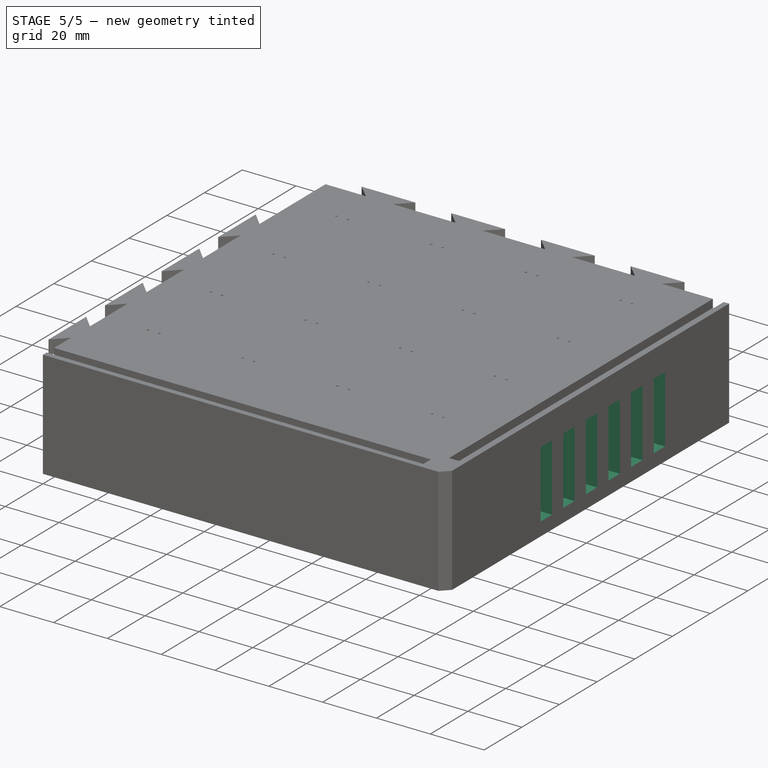
[diagram: stage 5 of 5 — iso view after this stage's code; geometry added in this stage tinted green]
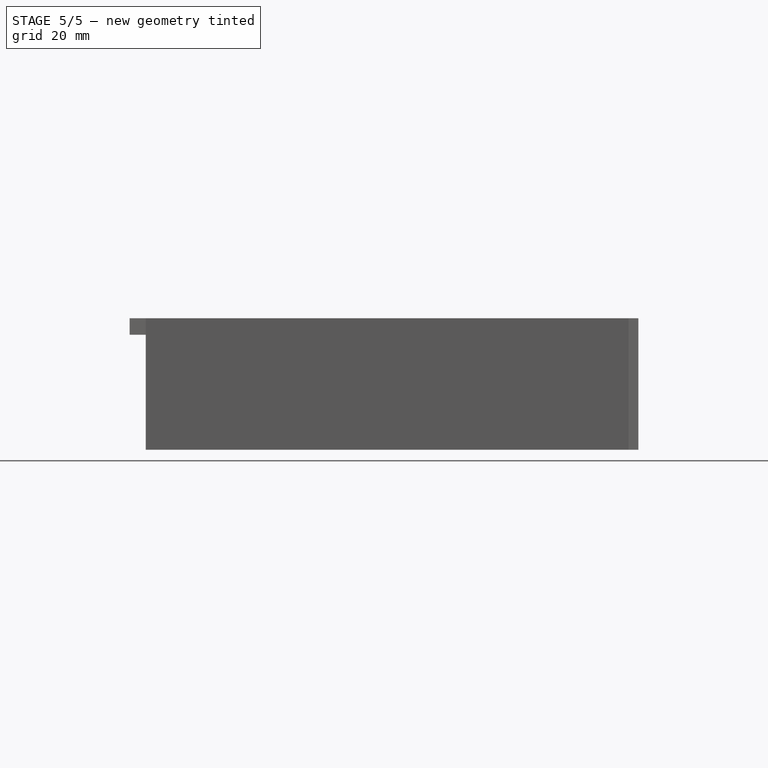
[diagram: stage 5 of 5 — front view after this stage's code; geometry added in this stage tinted green]
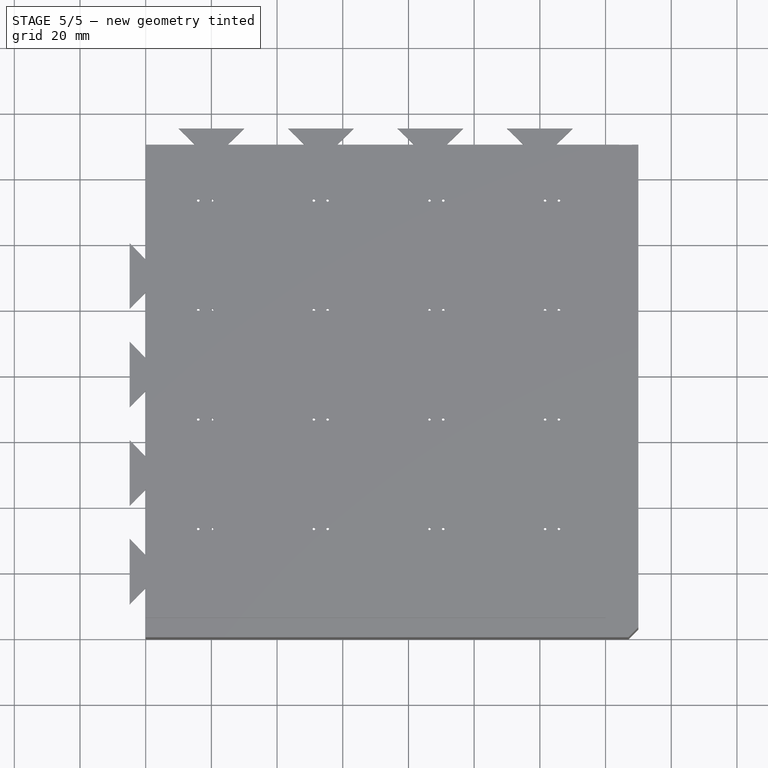
[diagram: stage 5 of 5 — top view after this stage's code; geometry added in this stage tinted green]
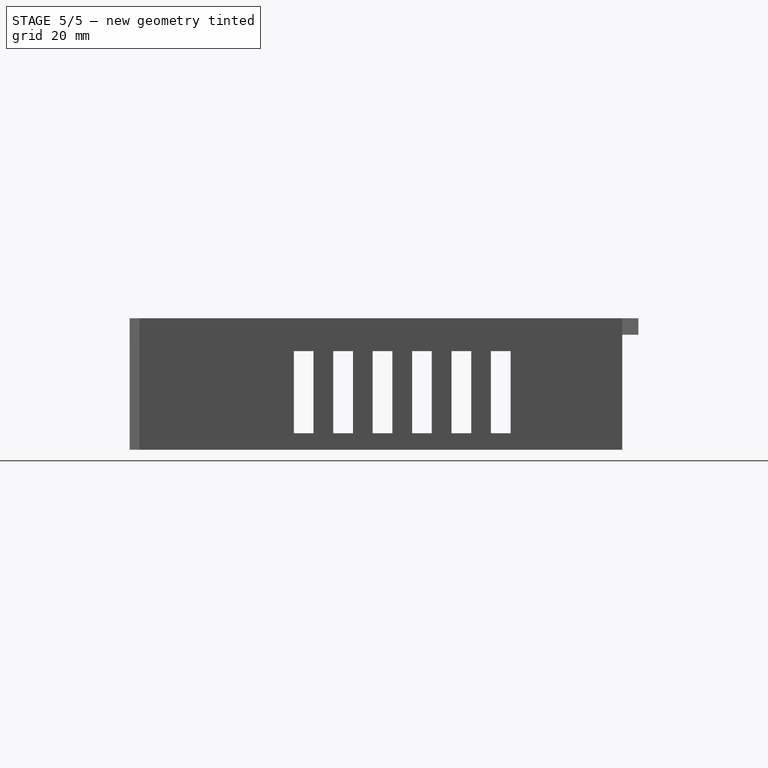
[diagram: stage 5 of 5 — right view after this stage's code; geometry added in this stage tinted green]
FEATURE [Sketcher::SketchObject] Sketch009
  FullyConstrained = true
  MapMode = 5
  Placement = pos=(0,0,0) rot=(1,0,0;3.14159rad)
  Support = -> [Chamfer001]
  sketch-geometry (12):
    g0: LineSegment StartX=0 StartY=0 StartZ=0 EndX=150 EndY=0 EndZ=0
    g1: LineSegment StartX=0 StartY=0 StartZ=0 EndX=0 EndY=-22 EndZ=0
    g2: LineSegment StartX=0 StartY=-22 StartZ=0 EndX=10 EndY=-22 EndZ=0
    g3: LineSegment StartX=10 StartY=-22 StartZ=0 EndX=135 EndY=-22 EndZ=0
    g4: LineSegment StartX=10 StartY=-22 StartZ=0 EndX=10 EndY=-24 EndZ=0
    g5: LineSegment StartX=10 StartY=-24 StartZ=0 EndX=135 EndY=-24 EndZ=0
    g6: LineSegment StartX=10 StartY=-24 StartZ=0 EndX=10 EndY=-25.8 EndZ=0
    g7: LineSegment StartX=10 StartY=-25.8 StartZ=0 EndX=135 EndY=-25.8 EndZ=0
    g8: LineSegment StartX=10 StartY=-25.8 StartZ=0 EndX=10 EndY=-27.8 EndZ=0
    g9: LineSegment StartX=10 StartY=-27.8 StartZ=0 EndX=135 EndY=-27.8 EndZ=0
    g10: LineSegment StartX=135 StartY=-22 StartZ=0 EndX=135 EndY=-24 EndZ=0
    g11: LineSegment StartX=135 StartY=-27.8 StartZ=0 EndX=135 EndY=-25.8 EndZ=0
  constraints (34):
    c: Coincident(g0,g-1)
    c: PointOnObject(g0,g-1)
    c: DistanceX(g0,g0) = 150
    c: Coincident(g1,g-1)
    c: PointOnObject(g1,g-2)
    c: DistanceY(g1,g1) = 22
    c: Coincident(g2,g1)
    c: Horizontal(g2)
    c: DistanceX(g2,g2) = 10
    c: Coincident(g3,g2)
    c: Horizontal(g3)
    c: DistanceX(g3,g3) = 125
    c: Coincident(g4,g3)
    c: Vertical(g4)
    c: DistanceY(g4,g4) = 2
    c: Coincident(g5,g4)
    c: Horizontal(g5)
    c: DistanceX(g5,g5) = 125
    c: Coincident(g6,g4)
    c: Vertical(g6)
    c: DistanceY(g6,g6) = 1.8
    c: Coincident(g7,g6)
    c: Horizontal(g7)
    c: DistanceX(g7,g7) = 125
    c: Coincident(g8,g7)
    c: Vertical(g8)
    c: DistanceY(g8,g8) = 2
    c: Coincident(g9,g8)
    c: Horizontal(g9)
    c: DistanceX(g9,g9) = 125
    c: Coincident(g10,g3)
    c: Coincident(g10,g5)
    c: Coincident(g11,g9)
    c: Coincident(g11,g7)
FEATURE [PartDesign::Pad] Pad005
  BaseFeature = -> Chamfer001
  Direction = (1,1,1)
  Length = 1.8
  Length2 = 100
  Profile = -> Sketch009
  Type = 0
FEATURE [Sketcher::SketchObject] Sketch010
  FullyConstrained = true
  MapMode = 5
  Placement = pos=(0,27.8,0) rot=(0,0.707107,0.707107;3.14159rad)
  Support = -> [Pad005]
  sketch-geometry (42):
    g0: LineSegment StartX=0 StartY=0 StartZ=0 EndX=0 EndY=-1.8 EndZ=0
    g1: LineSegment StartX=0 StartY=-1.8 StartZ=0 EndX=-10 EndY=-1.8 EndZ=0
    g2: LineSegment StartX=-10 StartY=-1.8 StartZ=0 EndX=-11.6 EndY=-1.8 EndZ=0
    g3: LineSegment StartX=-11.6 StartY=-1.8 StartZ=0 EndX=-13 EndY=-1.8 EndZ=0
    g4: LineSegment StartX=-13 StartY=-1.8 StartZ=0 EndX=-13 EndY=0 EndZ=0
    g5: LineSegment StartX=-13 StartY=0 StartZ=0 EndX=-11.6 EndY=0 EndZ=0
    g6: LineSegment StartX=-11.6 StartY=0 StartZ=0 EndX=-11.6 EndY=-1.8 EndZ=0
    g7: LineSegment StartX=-13 StartY=-1.8 StartZ=0 EndX=-23.2 EndY=-1.8 EndZ=0
    g8: LineSegment StartX=-23.2 StartY=-1.8 StartZ=0 EndX=-24.6 EndY=-1.8 EndZ=0
    g9: LineSegment StartX=-24.6 StartY=-1.8 StartZ=0 EndX=-24.6 EndY=0 EndZ=0
    g10: LineSegment StartX=-24.6 StartY=0 StartZ=0 EndX=-23.2 EndY=0 EndZ=0
    g11: LineSegment StartX=-23.2 StartY=0 StartZ=0 EndX=-23.2 EndY=-1.8 EndZ=0
    g12: LineSegment StartX=-24.6 StartY=-1.8 StartZ=0 EndX=-46.8 EndY=-1.8 EndZ=0
    g13: LineSegment StartX=-46.8 StartY=-1.8 StartZ=0 EndX=-48.2 EndY=-1.8 EndZ=0
    g14: LineSegment StartX=-48.2 StartY=-1.8 StartZ=0 EndX=-48.2 EndY=0 EndZ=0
    g15: LineSegment StartX=-48.2 StartY=0 StartZ=0 EndX=-46.8 EndY=0 EndZ=0
    g16: LineSegment StartX=-46.8 StartY=0 StartZ=0 EndX=-46.8 EndY=-1.8 EndZ=0
    g17: LineSegment StartX=-48.2 StartY=-1.8 StartZ=0 EndX=-58.4 EndY=-1.8 EndZ=0
    g18: LineSegment StartX=-58.4 StartY=-1.8 StartZ=0 EndX=-59.8 EndY=-1.8 EndZ=0
    g19: LineSegment StartX=-59.8 StartY=-1.8 StartZ=0 EndX=-59.8 EndY=0 EndZ=0
    g20: LineSegment StartX=-59.8 StartY=0 StartZ=0 EndX=-58.4 EndY=0 EndZ=0
    g21: LineSegment StartX=-58.4 StartY=0 StartZ=0 EndX=-58.4 EndY=-1.8 EndZ=0
    g22: LineSegment StartX=-59.8 StartY=-1.8 StartZ=0 EndX=-82 EndY=-1.8 EndZ=0
    g23: LineSegment StartX=-82 StartY=-1.8 StartZ=0 EndX=-83.4 EndY=-1.8 EndZ=0
    g24: LineSegment StartX=-83.4 StartY=-1.8 StartZ=0 EndX=-83.4 EndY=0 EndZ=0
    g25: LineSegment StartX=-83.4 StartY=0 StartZ=0 EndX=-82 EndY=0 EndZ=0
    g26: LineSegment StartX=-82 StartY=0 StartZ=0 EndX=-82 EndY=-1.8 EndZ=0
    g27: LineSegment StartX=-83.4 StartY=-1.8 StartZ=0 EndX=-93.6 EndY=-1.8 EndZ=0
    g28: LineSegment StartX=-93.6 StartY=-1.8 StartZ=0 EndX=-95 EndY=-1.8 EndZ=0
    g29: LineSegment StartX=-95 StartY=-1.8 StartZ=0 EndX=-95 EndY=0 EndZ=0
    g30: LineSegment StartX=-95 StartY=0 StartZ=0 EndX=-93.6 EndY=0 EndZ=0
    g31: LineSegment StartX=-93.6 StartY=0 StartZ=0 EndX=-93.6 EndY=-1.8 EndZ=0
    g32: LineSegment StartX=-95 StartY=-1.8 StartZ=0 EndX=-117.2 EndY=-1.8 EndZ=0
    g33: LineSegment StartX=-117.2 StartY=-1.8 StartZ=0 EndX=-118.6 EndY=-1.8 EndZ=0
    g34: LineSegment StartX=-118.6 StartY=-1.8 StartZ=0 EndX=-118.6 EndY=0 EndZ=0
    g35: LineSegment StartX=-118.6 StartY=0 StartZ=0 EndX=-117.2 EndY=0 EndZ=0
    g36: LineSegment StartX=-117.2 StartY=0 StartZ=0 EndX=-117.2 EndY=-1.8 EndZ=0
    g37: LineSegment StartX=-118.6 StartY=-1.8 StartZ=0 EndX=-128.8 EndY=-1.8 EndZ=0
    g38: LineSegment StartX=-128.8 StartY=-1.8 StartZ=0 EndX=-130.2 EndY=-1.8 EndZ=0
    g39: LineSegment StartX=-130.2 StartY=-1.8 StartZ=0 EndX=-130.2 EndY=0 EndZ=0
    g40: LineSegment StartX=-130.2 StartY=0 StartZ=0 EndX=-128.8 EndY=0 EndZ=0
    g41: LineSegment StartX=-128.8 StartY=0 StartZ=0 EndX=-128.8 EndY=-1.8 EndZ=0
  constraints (118):
    c: Coincident(g0,g-1)
    c: PointOnObject(g0,g-2)
    c: DistanceY(g0,g0) = 1.8
    c: Coincident(g1,g0)
    c: Horizontal(g1)
    c: DistanceX(g1,g1) = 10
    c: Coincident(g2,g1)
    c: Horizontal(g2)
    c: DistanceX(g2,g2) = 1.6
    c: Coincident(g3,g4)
    c: Coincident(g4,g5)
    c: Coincident(g5,g6)
    c: Coincident(g6,g3)
    c: Horizontal(g3)
    c: Horizontal(g5)
    c: Vertical(g4)
    c: Vertical(g6)
    c: Coincident(g3,g2)
    c: DistanceX(g3,g3) = 1.4
    c: Coincident(g7,g3)
    c: Horizontal(g7)
    c: DistanceX(g7,g7) = 10.2
    c: Coincident(g8,g9)
    c: Coincident(g9,g10)
    c: Coincident(g10,g11)
    c: Coincident(g11,g8)
    c: Horizontal(g8)
    c: Horizontal(g10)
    c: Vertical(g9)
    c: Vertical(g11)
    c: Coincident(g8,g7)
    c: DistanceX(g8,g8) = 1.4
    c: Coincident(g12,g8)
    c: Horizontal(g12)
    c: DistanceX(g12,g12) = 22.2
    c: Coincident(g13,g14)
    c: Coincident(g14,g15)
    c: Coincident(g15,g16)
    c: Coincident(g16,g13)
    c: Horizontal(g13)
    c: Horizontal(g15)
    c: Vertical(g14)
    c: Vertical(g16)
    c: Coincident(g13,g12)
    c: DistanceX(g13,g13) = 1.4
    c: Coincident(g17,g13)
    c: Horizontal(g17)
    c: DistanceX(g17,g17) = 10.2
    c: Coincident(g18,g19)
    c: Coincident(g19,g20)
    c: Coincident(g20,g21)
    c: Coincident(g21,g18)
    c: Horizontal(g18)
    c: Horizontal(g20)
    c: Vertical(g19)
    c: Vertical(g21)
    c: Coincident(g18,g17)
    c: DistanceX(g18,g18) = 1.4
    c: Coincident(g22,g18)
    c: Horizontal(g22)
    c: DistanceX(g22,g22) = 22.2
    c: Coincident(g23,g24)
    c: Coincident(g24,g25)
    c: Coincident(g25,g26)
    c: Coincident(g26,g23)
    c: Horizontal(g23)
    c: Horizontal(g25)
    c: Vertical(g24)
    c: Vertical(g26)
    c: Coincident(g23,g22)
    c: DistanceX(g23,g23) = 1.4
    c: Coincident(g27,g23)
    c: Horizontal(g27)
    c: DistanceX(g27,g27) = 10.2
    c: Coincident(g28,g29)
    c: Coincident(g29,g30)
    c: Coincident(g30,g31)
    c: Coincident(g31,g28)
    c: Horizontal(g28)
    c: Horizontal(g30)
    c: Vertical(g29)
    c: Vertical(g31)
    c: Coincident(g28,g27)
    c: DistanceX(g28,g28) = 1.4
    c: Coincident(g32,g28)
    c: Horizontal(g32)
    c: DistanceX(g32,g32) = 22.2
    c: Coincident(g33,g34)
    c: Coincident(g34,g35)
    c: Coincident(g35,g36)
    c: Coincident(g36,g33)
    c: Horizontal(g33)
    c: Horizontal(g35)
    c: Vertical(g34)
    c: Vertical(g36)
    c: Coincident(g33,g32)
    c: DistanceX(g33,g33) = 1.4
    c: Coincident(g37,g33)
    c: Horizontal(g37)
    c: DistanceX(g37,g37) = 10.2
    c: Coincident(g38,g39)
    c: Coincident(g39,g40)
    c: Coincident(g40,g41)
    c: Coincident(g41,g38)
    c: Horizontal(g38)
    c: Horizontal(g40)
    c: Vertical(g39)
    c: Vertical(g41)
    c: Coincident(g38,g37)
    c: DistanceX(g38,g38) = 1.4
    c: DistanceY(g39,g39) = 1.8
    c: DistanceY(g29,g29) = 1.8
    c: DistanceY(g24,g24) = 1.8
    c: DistanceY(g19,g19) = 1.8
    c: DistanceY(g14,g14) = 1.8
    c: DistanceY(g9,g9) = 1.8
    c: DistanceY(g4,g4) = 1.8
    c: DistanceY(g34,g34) = 1.8
FEATURE [PartDesign::Pocket] Pocket003
  BaseFeature = -> Pad005
  Length = 2
  Length2 = 100
  Profile = -> Sketch010
  Type = 0
FEATURE [PartDesign::Chamfer] Chamfer002
  Angle = 45
  Base = -> Pocket003 [Edge510,Edge513,Edge516,Edge519,Edge522,Edge525,Edge528,Edge531,Edge533,Edge458]
  BaseFeature = -> Pocket003
  ChamferType = 0
  FlipDirection = false
  Size = 1.35
  Size2 = 1
  SupportTransform = false
FEATURE [Sketcher::SketchObject] Sketch011
  FullyConstrained = true
  MapMode = 5
  Placement = pos=(150,0,0) rot=(0.57735,0.57735,0.57735;2.0944rad)
  Support = -> [Chamfer002]
  sketch-geometry (31):
    g0: LineSegment StartX=0 StartY=0 StartZ=0 EndX=50 EndY=0 EndZ=0
    g1: LineSegment StartX=50 StartY=0 StartZ=0 EndX=50 EndY=-5 EndZ=0
    g2: LineSegment StartX=50 StartY=-5 StartZ=0 EndX=56 EndY=-5 EndZ=0
    g3: LineSegment StartX=56 StartY=-5 StartZ=0 EndX=62 EndY=-5 EndZ=0
    g4: LineSegment StartX=62 StartY=-5 StartZ=0 EndX=68 EndY=-5 EndZ=0
    g5: LineSegment StartX=68 StartY=-5 StartZ=0 EndX=74 EndY=-5 EndZ=0
    g6: LineSegment StartX=74 StartY=-5 StartZ=0 EndX=80 EndY=-5 EndZ=0
    g7: LineSegment StartX=80 StartY=-5 StartZ=0 EndX=86 EndY=-5 EndZ=0
    g8: LineSegment StartX=86 StartY=-5 StartZ=0 EndX=92 EndY=-5 EndZ=0
    g9: LineSegment StartX=92 StartY=-5 StartZ=0 EndX=98 EndY=-5 EndZ=0
    g10: LineSegment StartX=98 StartY=-5 StartZ=0 EndX=104 EndY=-5 EndZ=0
    g11: LineSegment StartX=50 StartY=-5 StartZ=0 EndX=50 EndY=-30 EndZ=0
    g12: LineSegment StartX=56 StartY=-5 StartZ=0 EndX=56 EndY=-30 EndZ=0
    g13: LineSegment StartX=62 StartY=-5 StartZ=0 EndX=62 EndY=-30 EndZ=0
    g14: LineSegment StartX=68 StartY=-5 StartZ=0 EndX=68 EndY=-30 EndZ=0
    g15: LineSegment StartX=74 StartY=-5 StartZ=0 EndX=74 EndY=-30 EndZ=0
    g16: LineSegment StartX=80 StartY=-5 StartZ=0 EndX=80 EndY=-30 EndZ=0
    g17: LineSegment StartX=86 StartY=-5 StartZ=0 EndX=86 EndY=-30 EndZ=0
    g18: LineSegment StartX=92 StartY=-5 StartZ=0 EndX=92 EndY=-30 EndZ=0
    g19: LineSegment StartX=104 StartY=-5 StartZ=0 EndX=104 EndY=-30 EndZ=0
    g20: LineSegment StartX=98 StartY=-5 StartZ=0 EndX=98 EndY=-30 EndZ=0
    g21: LineSegment StartX=50 StartY=-30 StartZ=0 EndX=56 EndY=-30 EndZ=0
    g22: LineSegment StartX=62 StartY=-30 StartZ=0 EndX=68 EndY=-30 EndZ=0
    g23: LineSegment StartX=74 StartY=-30 StartZ=0 EndX=80 EndY=-30 EndZ=0
    g24: LineSegment StartX=86 StartY=-30 StartZ=0 EndX=92 EndY=-30 EndZ=0
    g25: LineSegment StartX=98 StartY=-30 StartZ=0 EndX=104 EndY=-30 EndZ=0
    g26: LineSegment StartX=104 StartY=-5 StartZ=0 EndX=110 EndY=-5 EndZ=0
    g27: LineSegment StartX=110 StartY=-5 StartZ=0 EndX=116 EndY=-5 EndZ=0
    g28: LineSegment StartX=110 StartY=-5 StartZ=0 EndX=110 EndY=-30 EndZ=0
    g29: LineSegment StartX=116 StartY=-5 StartZ=0 EndX=116 EndY=-30 EndZ=0
    g30: LineSegment StartX=110 StartY=-30 StartZ=0 EndX=116 EndY=-30 EndZ=0
  constraints (87):
    c: Coincident(g0,g-1)
    c: PointOnObject(g0,g-1)
    c: DistanceX(g0,g0) = 50
    c: Coincident(g1,g0)
    c: Vertical(g1)
    c: DistanceY(g1,g1) = 5
    c: Coincident(g2,g1)
    c: Horizontal(g2)
    c: DistanceX(g2,g2) = 6
    c: Coincident(g3,g2)
    c: Horizontal(g3)
    c: DistanceX(g3,g3) = 6
    c: Coincident(g4,g3)
    c: Horizontal(g4)
    c: DistanceX(g4,g4) = 6
    c: Coincident(g5,g4)
    c: Horizontal(g5)
    c: DistanceX(g5,g5) = 6
    c: Coincident(g6,g5)
    c: Horizontal(g6)
    c: DistanceX(g6,g6) = 6
    c: Coincident(g7,g6)
    c: Horizontal(g7)
    c: DistanceX(g7,g7) = 6
    c: Coincident(g8,g7)
    c: Horizontal(g8)
    c: DistanceX(g8,g8) = 6
    c: Coincident(g9,g8)
    c: Horizontal(g9)
    c: DistanceX(g9,g9) = 6
    c: Coincident(g10,g9)
    c: Horizontal(g10)
    c: DistanceX(g10,g10) = 6
    c: Coincident(g11,g2)
    c: Vertical(g11)
    c: Coincident(g12,g2)
    c: Vertical(g12)
    c: Coincident(g13,g4)
    c: Vertical(g13)
    c: Coincident(g14,g4)
    c: Vertical(g14)
    c: Coincident(g15,g6)
    c: Vertical(g15)
    c: Coincident(g16,g6)
    c: Vertical(g16)
    c: Coincident(g17,g8)
    c: Vertical(g17)
    c: Coincident(g18,g8)
    c: Vertical(g18)
    c: Coincident(g19,g10)
    c: Vertical(g19)
    c: Coincident(g20,g10)
    c: Vertical(g20)
    c: DistanceY(g11,g11) = 25
    c: DistanceY(g12,g12) = 25
    c: DistanceY(g13,g13) = 25
    c: DistanceY(g14,g14) = 25
    c: DistanceY(g15,g15) = 25
    c: DistanceY(g16,g16) = 25
    c: DistanceY(g17,g17) = 25
    c: DistanceY(g18,g18) = 25
    c: DistanceY(g20,g20) = 25
    c: DistanceY(g19,g19) = 25
    c: Coincident(g21,g11)
    c: Coincident(g21,g12)
    c: Coincident(g22,g13)
    c: Coincident(g22,g14)
    c: Coincident(g23,g15)
    c: Coincident(g23,g16)
    c: Coincident(g24,g17)
    c: Coincident(g24,g18)
    c: Coincident(g25,g20)
    c: Coincident(g25,g19)
    c: Coincident(g26,g10)
    c: Horizontal(g26)
    c: DistanceX(g26,g26) = 6
    c: Coincident(g27,g26)
    c: Horizontal(g27)
    c: DistanceX(g27,g27) = 6
    c: Coincident(g28,g27)
    c: Vertical(g28)
    c: Coincident(g29,g27)
    c: Vertical(g29)
    c: DistanceY(g28,g28) = 25
    c: DistanceY(g29,g29) = 25
    c: Coincident(g30,g28)
    c: Coincident(g30,g29)
FEATURE [PartDesign::Pocket] Pocket004
  BaseFeature = -> Chamfer002
  Length = 4.5
  Length2 = 100
  Profile = -> Sketch011
  Type = 0
FEATURE [PartDesign::Body] Body
  Group = -> [Sketch,Pad,Sketch001,Pad001,LinearPattern,Sketch002,Pad002,LinearPattern001,Sketch003,Pad003,Sketch004,Hole,LinearPattern002,Chamfer,Sketch005,Pocket,Sketch006,Pocket001,Sketch007,Pocket002,Sketch008,Pad004,LinearPattern003,Chamfer001,Sketch009,Pad005,Sketch010,Pocket003,Chamfer002,Sketch011,Pocket004]
  Origin = -> Origin
  Tip = -> Pocket004
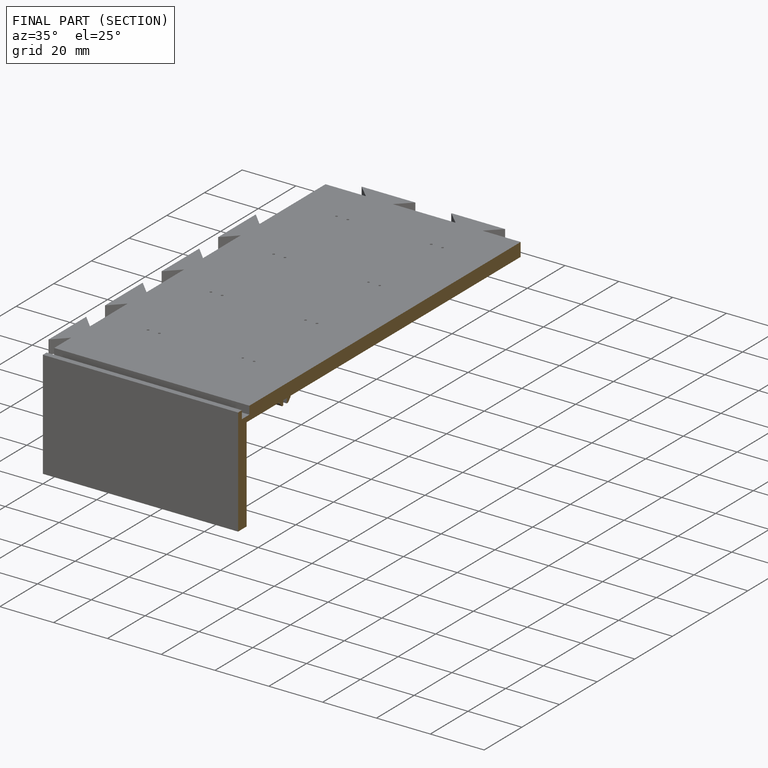
[diagram: finished part — half-section view (interior)]
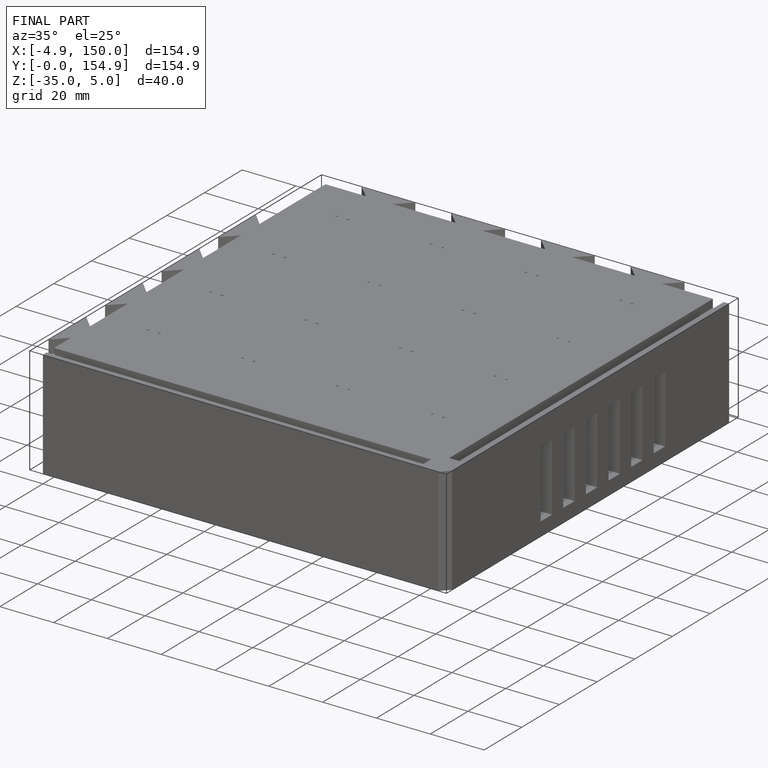
[diagram: finished part — iso view with bounding-box wireframe]
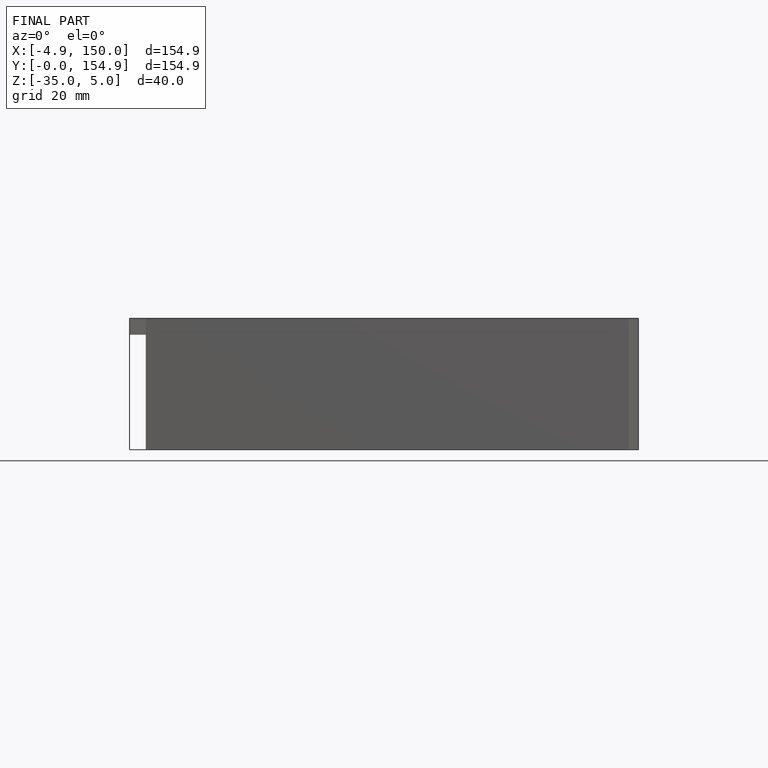
[diagram: finished part — front view with bounding-box wireframe]
